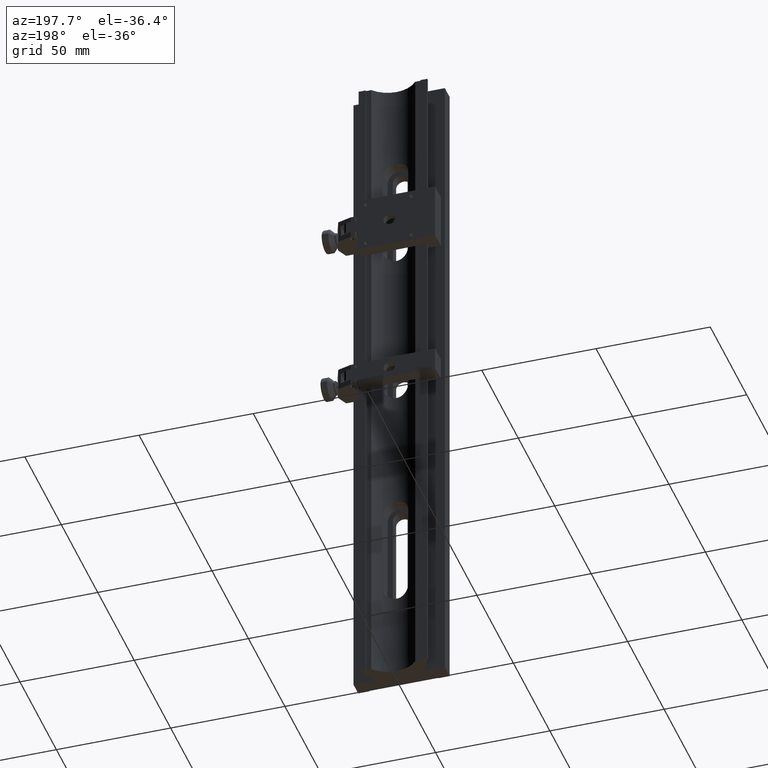
[diagram: clean part render]
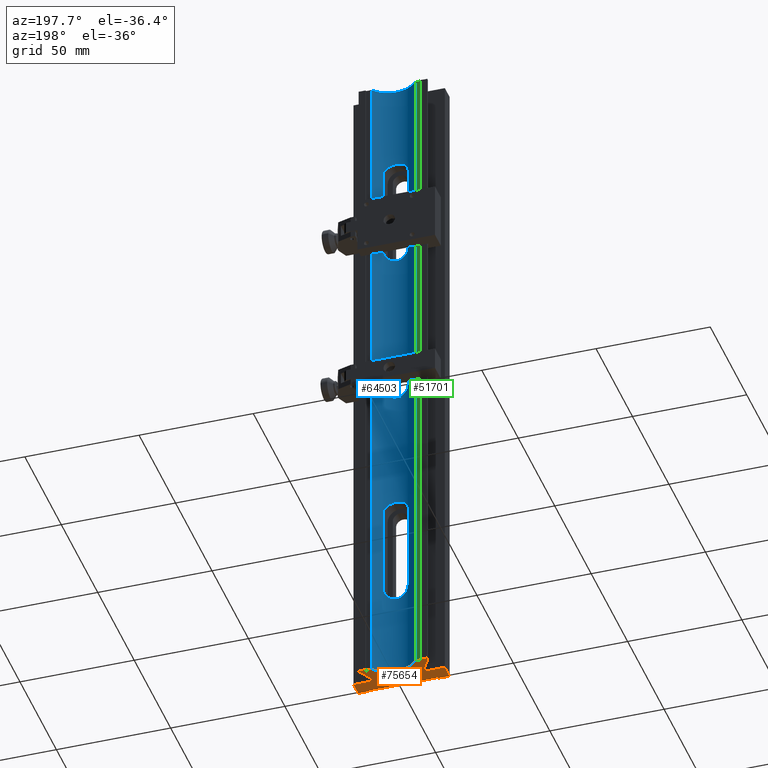
[diagram: same view with three faces highlighted in distinct colors, each labeled with its STEP entity id]
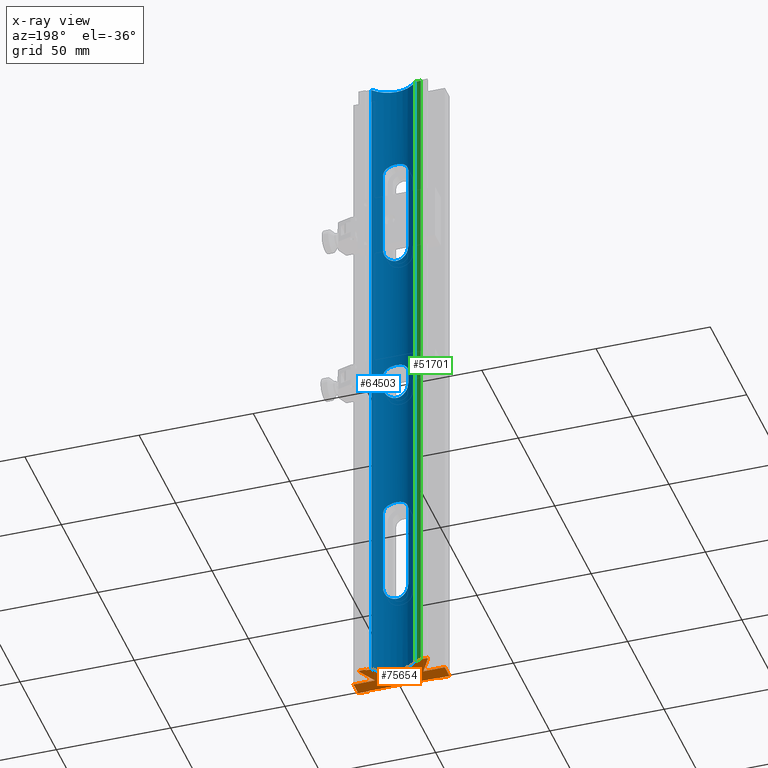
[diagram: x-ray of the same camera — body ghosted, the three highlighted faces saturated]
A machine part, auxiliary view with three faces highlighted in distinct colors.
The next image is the same camera in x-ray (body ghosted, the three faces saturated) — at least one of them is partly hidden behind the body in this view.
Their STEP definitions:

[orange] entity #75654 — the highlighted planar face has unit normal (0, 0, 1).
#15 = ORIENTED_EDGE ( 'NONE', *, *, #36926, .T. ) ;
#715 = VERTEX_POINT ( 'NONE', #27202 ) ;
#970 = DIRECTION ( 'NONE',  ( 0.000000000000000000, -1.000000000000000000, 0.000000000000000000 ) ) ;
#1093 = CARTESIAN_POINT ( 'NONE',  ( -15.00000000000000000, 16.00000000000000000, -150.0000000000000000 ) ) ;
#1174 = ORIENTED_EDGE ( 'NONE', *, *, #44946, .F. ) ;
#1497 = VECTOR ( 'NONE', #94269, 1000.000000000000000 ) ;
#2943 = ORIENTED_EDGE ( 'NONE', *, *, #31234, .T. ) ;
#3721 = EDGE_CURVE ( 'NONE', #57667, #82278, #35475, .T. ) ;
#5481 = VECTOR ( 'NONE', #106075, 1000.000000000000000 ) ;
#8774 = ORIENTED_EDGE ( 'NONE', *, *, #14013, .F. ) ;
#9200 = LINE ( 'NONE', #57708, #78560 ) ;
#10929 = DIRECTION ( 'NONE',  ( -1.717114570520704725E-16, -1.000000000000000000, 0.000000000000000000 ) ) ;
#11088 = EDGE_CURVE ( 'NONE', #92897, #31683, #21319, .T. ) ;
#12032 = CARTESIAN_POINT ( 'NONE',  ( -20.00000000000000000, 0.000000000000000000, -150.0000000000000000 ) ) ;
#12337 = VECTOR ( 'NONE', #89177, 1000.000000000000114 ) ;
#12543 = DIRECTION ( 'NONE',  ( 0.000000000000000000, -1.000000000000000000, 0.000000000000000000 ) ) ;
#12746 = LINE ( 'NONE', #14351, #82286 ) ;
#13601 = CARTESIAN_POINT ( 'NONE',  ( -2.407148620655124556E-16, 16.00000000000000000, -150.0000000000000000 ) ) ;
#14013 = EDGE_CURVE ( 'NONE', #17846, #86171, #74757, .T. ) ;
#14351 = CARTESIAN_POINT ( 'NONE',  ( 12.00000000000000000, 16.00000000000000000, -150.0000000000000000 ) ) ;
#14386 = EDGE_CURVE ( 'NONE', #63423, #78706, #14459, .T. ) ;
#14459 = LINE ( 'NONE', #47684, #85428 ) ;
#14757 = VECTOR ( 'NONE', #29805, 1000.000000000000000 ) ;
#15882 = LINE ( 'NONE', #98179, #46671 ) ;
#15992 = CARTESIAN_POINT ( 'NONE',  ( -20.00000000000000000, -6.500000000000000000, -150.0000000000000000 ) ) ;
#16219 = EDGE_LOOP ( 'NONE', ( #53375, #67725, #43174, #48150, #1174, #15, #93702, #37400, #8774, #77466, #68247, #24662, #25445, #85345, #53199, #26446, #58038, #24479, #36992, #95260, #40640, #56105, #26282, #2943 ) ) ;
#16585 = EDGE_CURVE ( 'NONE', #99293, #92897, #24936, .T. ) ;
#16652 = VECTOR ( 'NONE', #10929, 1000.000000000000000 ) ;
#17051 = DIRECTION ( 'NONE',  ( 1.000000000000000000, 1.301042606982603842E-16, 0.000000000000000000 ) ) ;
#17480 = CARTESIAN_POINT ( 'NONE',  ( -20.00000000000000000, 0.000000000000000000, -150.0000000000000000 ) ) ;
#17685 = CARTESIAN_POINT ( 'NONE',  ( -2.407148620655124556E-16, 16.00000000000000000, -150.0000000000000000 ) ) ;
#17842 = EDGE_CURVE ( 'NONE', #48597, #51888, #51442, .T. ) ;
#17846 = VERTEX_POINT ( 'NONE', #59077 ) ;
#18759 = PLANE ( 'NONE',  #106030 ) ;
#20233 = VECTOR ( 'NONE', #24217, 1000.000000000000000 ) ;
#20933 = VECTOR ( 'NONE', #34182, 1000.000000000000114 ) ;
#21026 = VECTOR ( 'NONE', #33020, 1000.000000000000000 ) ;
#21319 = LINE ( 'NONE', #12032, #73553 ) ;
#21839 = DIRECTION ( 'NONE',  ( -1.000000000000000000, 0.000000000000000000, 0.000000000000000000 ) ) ;
#22031 = VERTEX_POINT ( 'NONE', #101615 ) ;
#24217 = DIRECTION ( 'NONE',  ( 0.000000000000000000, 1.000000000000000000, 0.000000000000000000 ) ) ;
#24479 = ORIENTED_EDGE ( 'NONE', *, *, #62747, .F. ) ;
#24662 = ORIENTED_EDGE ( 'NONE', *, *, #3721, .T. ) ;
#24936 = LINE ( 'NONE', #90863, #20933 ) ;
#25015 = DIRECTION ( 'NONE',  ( -1.000000000000000000, -3.154042683594195121E-16, 0.000000000000000000 ) ) ;
#25017 = CARTESIAN_POINT ( 'NONE',  ( 12.00000000000000000, 8.500000000000000000, -150.0000000000000000 ) ) ;
#25445 = ORIENTED_EDGE ( 'NONE', *, *, #30784, .F. ) ;
#25867 = DIRECTION ( 'NONE',  ( 0.000000000000000000, 0.000000000000000000, 1.000000000000000000 ) ) ;
#26238 = EDGE_CURVE ( 'NONE', #17846, #45802, #12746, .T. ) ;
#26282 = ORIENTED_EDGE ( 'NONE', *, *, #16585, .F. ) ;
#26446 = ORIENTED_EDGE ( 'NONE', *, *, #91014, .F. ) ;
#26878 = LINE ( 'NONE', #15992, #26995 ) ;
#26995 = VECTOR ( 'NONE', #17051, 1000.000000000000000 ) ;
#27003 = CARTESIAN_POINT ( 'NONE',  ( -2.407148620655124556E-16, 8.400000000000000355, -150.0000000000000000 ) ) ;
#27202 = CARTESIAN_POINT ( 'NONE',  ( -12.00000000000000000, 8.000000000000000000, -150.0000000000000000 ) ) ;
#27553 = CARTESIAN_POINT ( 'NONE',  ( -2.407148620655124556E-16, -6.000000000000000000, -150.0000000000000000 ) ) ;
#28333 = EDGE_CURVE ( 'NONE', #60702, #76033, #83292, .T. ) ;
#29805 = DIRECTION ( 'NONE',  ( 2.101878407556359713E-16, -1.000000000000000000, 0.000000000000000000 ) ) ;
#30784 = EDGE_CURVE ( 'NONE', #78706, #82278, #64680, .T. ) ;
#31234 = EDGE_CURVE ( 'NONE', #99293, #78513, #98825, .T. ) ;
#31298 = CARTESIAN_POINT ( 'NONE',  ( -15.00000000000000000, 14.43276648600719980, -150.0000000000000000 ) ) ;
#31305 = CARTESIAN_POINT ( 'NONE',  ( 15.00000000000000000, -6.000000000000000000, -150.0000000000000000 ) ) ;
#31683 = VERTEX_POINT ( 'NONE', #17480 ) ;
#33020 = DIRECTION ( 'NONE',  ( -5.337610695313250398E-16, 1.000000000000000000, 0.000000000000000000 ) ) ;
#33573 = CARTESIAN_POINT ( 'NONE',  ( 10.59252271188811889, 2.594419806801890142E-15, -150.0000000000000000 ) ) ;
#33950 = EDGE_CURVE ( 'NONE', #86171, #69729, #69860, .T. ) ;
#34046 = EDGE_CURVE ( 'NONE', #57667, #45802, #9200, .T. ) ;
#34182 = DIRECTION ( 'NONE',  ( 0.5000000000000011102, -0.8660254037844379305, 0.000000000000000000 ) ) ;
#34347 = DIRECTION ( 'NONE',  ( 0.000000000000000000, -1.000000000000000000, 0.000000000000000000 ) ) ;
#35189 = DIRECTION ( 'NONE',  ( -1.000000000000000000, 0.000000000000000000, 0.000000000000000000 ) ) ;
#35475 = LINE ( 'NONE', #43077, #16652 ) ;
#35744 = DIRECTION ( 'NONE',  ( 1.000000000000000000, 0.000000000000000000, 0.000000000000000000 ) ) ;
#35989 = CARTESIAN_POINT ( 'NONE',  ( 15.00000000000000000, -6.500000000000000000, -150.0000000000000000 ) ) ;
#36377 = DIRECTION ( 'NONE',  ( -1.000000000000000000, -1.445602896647339903E-16, 0.000000000000000000 ) ) ;
#36926 = EDGE_CURVE ( 'NONE', #95833, #715, #70170, .T. ) ;
#36992 = ORIENTED_EDGE ( 'NONE', *, *, #43323, .T. ) ;
#37400 = ORIENTED_EDGE ( 'NONE', *, *, #33950, .F. ) ;
#37534 = EDGE_CURVE ( 'NONE', #22031, #97856, #26878, .T. ) ;
#40082 = VECTOR ( 'NONE', #34347, 1000.000000000000000 ) ;
#40339 = CARTESIAN_POINT ( 'NONE',  ( -15.00000000000000000, -6.000000000000000000, -150.0000000000000000 ) ) ;
#40640 = ORIENTED_EDGE ( 'NONE', *, *, #88113, .F. ) ;
#41752 = CARTESIAN_POINT ( 'NONE',  ( 15.00000000000000000, 7.633974596215580277, -150.0000000000000000 ) ) ;
#42391 = LINE ( 'NONE', #42916, #43861 ) ;
#42916 = CARTESIAN_POINT ( 'NONE',  ( -13.29999999999996518, 16.00000000000000000, -150.0000000000000000 ) ) ;
#43077 = CARTESIAN_POINT ( 'NONE',  ( 15.00000000000000000, 14.43276648600719980, -150.0000000000000000 ) ) ;
#43174 = ORIENTED_EDGE ( 'NONE', *, *, #47840, .F. ) ;
#43323 = EDGE_CURVE ( 'NONE', #107840, #97856, #66521, .T. ) ;
#43861 = VECTOR ( 'NONE', #970, 1000.000000000000000 ) ;
#44946 = EDGE_CURVE ( 'NONE', #95833, #46118, #79944, .T. ) ;
#45802 = VERTEX_POINT ( 'NONE', #25017 ) ;
#46118 = VERTEX_POINT ( 'NONE', #75018 ) ;
#46166 = CARTESIAN_POINT ( 'NONE',  ( -15.50000000000000000, 8.500000000000000000, -150.0000000000000000 ) ) ;
#46671 = VECTOR ( 'NONE', #49121, 1000.000000000000000 ) ;
#46791 = CARTESIAN_POINT ( 'NONE',  ( -20.00000000000000000, -6.500000000000000000, -150.0000000000000000 ) ) ;
#47684 = CARTESIAN_POINT ( 'NONE',  ( 20.00000000000000000, 4.898587196589409870E-15, -150.0000000000000000 ) ) ;
#47840 = EDGE_CURVE ( 'NONE', #98299, #76033, #100551, .T. ) ;
#48150 = ORIENTED_EDGE ( 'NONE', *, *, #57801, .F. ) ;
#48597 = VERTEX_POINT ( 'NONE', #35989 ) ;
#48766 = VECTOR ( 'NONE', #36377, 1000.000000000000000 ) ;
#48932 = CARTESIAN_POINT ( 'NONE',  ( 15.00000000000000000, 8.500000000000000000, -150.0000000000000000 ) ) ;
#49121 = DIRECTION ( 'NONE',  ( -1.000000000000000000, 0.000000000000000000, 0.000000000000000000 ) ) ;
#49371 = LINE ( 'NONE', #65217, #21026 ) ;
#50908 = CARTESIAN_POINT ( 'NONE',  ( 15.00000000000000000, 16.00000000000000000, -150.0000000000000000 ) ) ;
#50934 = VECTOR ( 'NONE', #106211, 1000.000000000000000 ) ;
#51442 = LINE ( 'NONE', #50908, #20233 ) ;
#51888 = VERTEX_POINT ( 'NONE', #31305 ) ;
#52410 = CARTESIAN_POINT ( 'NONE',  ( -15.00000000000000000, -6.500000000000000000, -150.0000000000000000 ) ) ;
#52736 = CARTESIAN_POINT ( 'NONE',  ( -12.00000000000000000, 16.00000000000000000, -150.0000000000000000 ) ) ;
#52914 = CARTESIAN_POINT ( 'NONE',  ( 20.00000000000000000, 4.898587196589409870E-15, -150.0000000000000000 ) ) ;
#53199 = ORIENTED_EDGE ( 'NONE', *, *, #106678, .F. ) ;
#53375 = ORIENTED_EDGE ( 'NONE', *, *, #73063, .F. ) ;
#54175 = DIRECTION ( 'NONE',  ( -2.101878407556359713E-16, 1.000000000000000000, 0.000000000000000000 ) ) ;
#54799 = CARTESIAN_POINT ( 'NONE',  ( -14.69999999999996376, 8.500000000000000000, -150.0000000000000000 ) ) ;
#55911 = VECTOR ( 'NONE', #97772, 1000.000000000000000 ) ;
#56105 = ORIENTED_EDGE ( 'NONE', *, *, #11088, .F. ) ;
#56646 = CARTESIAN_POINT ( 'NONE',  ( -9.604686356149271020, 8.000000000000000000, -150.0000000000000000 ) ) ;
#57667 = VERTEX_POINT ( 'NONE', #48932 ) ;
#57708 = CARTESIAN_POINT ( 'NONE',  ( 10.00000000000000000, 8.500000000000000000, -150.0000000000000000 ) ) ;
#57801 = EDGE_CURVE ( 'NONE', #46118, #98299, #42391, .T. ) ;
#58038 = ORIENTED_EDGE ( 'NONE', *, *, #17842, .T. ) ;
#58422 = VECTOR ( 'NONE', #35744, 1000.000000000000000 ) ;
#59077 = CARTESIAN_POINT ( 'NONE',  ( 12.00000000000000000, 8.000000000000000000, -150.0000000000000000 ) ) ;
#59604 = CARTESIAN_POINT ( 'NONE',  ( -15.00000000000000000, 7.633974596215569619, -150.0000000000000000 ) ) ;
#60702 = VERTEX_POINT ( 'NONE', #54799 ) ;
#60901 = LINE ( 'NONE', #70702, #48766 ) ;
#62747 = EDGE_CURVE ( 'NONE', #107840, #51888, #92956, .T. ) ;
#63423 = VERTEX_POINT ( 'NONE', #52914 ) ;
#63712 = LINE ( 'NONE', #46791, #66223 ) ;
#64680 = LINE ( 'NONE', #33573, #12337 ) ;
#65217 = CARTESIAN_POINT ( 'NONE',  ( 20.00000000000000000, -6.500000000000000000, -150.0000000000000000 ) ) ;
#66223 = VECTOR ( 'NONE', #71909, 1000.000000000000000 ) ;
#66290 = VECTOR ( 'NONE', #91629, 1000.000000000000000 ) ;
#66521 = LINE ( 'NONE', #1093, #40082 ) ;
#67725 = ORIENTED_EDGE ( 'NONE', *, *, #28333, .T. ) ;
#68247 = ORIENTED_EDGE ( 'NONE', *, *, #34046, .F. ) ;
#69437 = FACE_OUTER_BOUND ( 'NONE', #16219, .T. ) ;
#69729 = VERTEX_POINT ( 'NONE', #56646 ) ;
#69860 = CIRCLE ( 'NONE', #90742, 12.50000000000000000 ) ;
#70170 = LINE ( 'NONE', #52736, #14757 ) ;
#70702 = CARTESIAN_POINT ( 'NONE',  ( 9.157674552523589243E-16, 8.000000000000000000, -150.0000000000000000 ) ) ;
#71314 = CARTESIAN_POINT ( 'NONE',  ( -15.00000000000000000, 8.500000000000000000, -150.0000000000000000 ) ) ;
#71909 = DIRECTION ( 'NONE',  ( 1.000000000000000000, 1.301042606982603842E-16, 0.000000000000000000 ) ) ;
#72989 = CARTESIAN_POINT ( 'NONE',  ( 9.604686356149281679, 8.000000000000000000, -150.0000000000000000 ) ) ;
#73063 = EDGE_CURVE ( 'NONE', #60702, #78513, #15882, .T. ) ;
#73553 = VECTOR ( 'NONE', #21839, 1000.000000000000000 ) ;
#74757 = LINE ( 'NONE', #99807, #66290 ) ;
#75018 = CARTESIAN_POINT ( 'NONE',  ( -13.29999999999996518, 8.500000000000000000, -150.0000000000000000 ) ) ;
#75654 = ADVANCED_FACE ( 'NONE', ( #69437 ), #18759, .F. ) ;
#76033 = VERTEX_POINT ( 'NONE', #102517 ) ;
#77403 = LINE ( 'NONE', #102430, #1497 ) ;
#77466 = ORIENTED_EDGE ( 'NONE', *, *, #26238, .T. ) ;
#78513 = VERTEX_POINT ( 'NONE', #71314 ) ;
#78560 = VECTOR ( 'NONE', #25015, 1000.000000000000000 ) ;
#78706 = VERTEX_POINT ( 'NONE', #80567 ) ;
#79944 = LINE ( 'NONE', #46166, #5481 ) ;
#80567 = CARTESIAN_POINT ( 'NONE',  ( 10.59252271188811889, 2.594419806801890142E-15, -150.0000000000000000 ) ) ;
#80946 = DIRECTION ( 'NONE',  ( -1.000000000000000000, -2.449293598294704935E-16, 0.000000000000000000 ) ) ;
#81099 = CARTESIAN_POINT ( 'NONE',  ( -13.29999999999996341, 8.400000000000000355, -150.0000000000000000 ) ) ;
#82278 = VERTEX_POINT ( 'NONE', #41752 ) ;
#82286 = VECTOR ( 'NONE', #54175, 1000.000000000000000 ) ;
#83292 = LINE ( 'NONE', #98558, #50934 ) ;
#84547 = CARTESIAN_POINT ( 'NONE',  ( 20.00000000000000000, -6.500000000000000000, -150.0000000000000000 ) ) ;
#84706 = DIRECTION ( 'NONE',  ( 1.000000000000000000, 0.000000000000000000, 0.000000000000000000 ) ) ;
#85345 = ORIENTED_EDGE ( 'NONE', *, *, #14386, .F. ) ;
#85428 = VECTOR ( 'NONE', #80946, 1000.000000000000000 ) ;
#86171 = VERTEX_POINT ( 'NONE', #72989 ) ;
#87197 = DIRECTION ( 'NONE',  ( 0.000000000000000000, 0.000000000000000000, -1.000000000000000000 ) ) ;
#88113 = EDGE_CURVE ( 'NONE', #31683, #22031, #77403, .T. ) ;
#89177 = DIRECTION ( 'NONE',  ( 0.5000000000000011102, 0.8660254037844379305, 0.000000000000000000 ) ) ;
#90742 = AXIS2_PLACEMENT_3D ( 'NONE', #13601, #87197, #12543 ) ;
#90863 = CARTESIAN_POINT ( 'NONE',  ( -10.59252271188811889, 0.000000000000000000, -150.0000000000000000 ) ) ;
#91014 = EDGE_CURVE ( 'NONE', #48597, #95963, #63712, .T. ) ;
#91267 = EDGE_CURVE ( 'NONE', #69729, #715, #60901, .T. ) ;
#91629 = DIRECTION ( 'NONE',  ( -1.000000000000000000, -1.445602896647339903E-16, 0.000000000000000000 ) ) ;
#92795 = CARTESIAN_POINT ( 'NONE',  ( -10.59252271188811889, 0.000000000000000000, -150.0000000000000000 ) ) ;
#92897 = VERTEX_POINT ( 'NONE', #92795 ) ;
#92956 = LINE ( 'NONE', #27553, #58422 ) ;
#93702 = ORIENTED_EDGE ( 'NONE', *, *, #91267, .F. ) ;
#94269 = DIRECTION ( 'NONE',  ( 5.337610695313250398E-16, -1.000000000000000000, 0.000000000000000000 ) ) ;
#95260 = ORIENTED_EDGE ( 'NONE', *, *, #37534, .F. ) ;
#95833 = VERTEX_POINT ( 'NONE', #106383 ) ;
#95963 = VERTEX_POINT ( 'NONE', #84547 ) ;
#97772 = DIRECTION ( 'NONE',  ( -1.717114570520704725E-16, 1.000000000000000000, 0.000000000000000000 ) ) ;
#97856 = VERTEX_POINT ( 'NONE', #52410 ) ;
#98179 = CARTESIAN_POINT ( 'NONE',  ( -15.50000000000000000, 8.500000000000000000, -150.0000000000000000 ) ) ;
#98299 = VERTEX_POINT ( 'NONE', #81099 ) ;
#98558 = CARTESIAN_POINT ( 'NONE',  ( -14.69999999999996376, 16.00000000000000000, -150.0000000000000000 ) ) ;
#98825 = LINE ( 'NONE', #31298, #55911 ) ;
#99293 = VERTEX_POINT ( 'NONE', #59604 ) ;
#99807 = CARTESIAN_POINT ( 'NONE',  ( 9.157674552523589243E-16, 8.000000000000000000, -150.0000000000000000 ) ) ;
#100551 = LINE ( 'NONE', #27003, #103239 ) ;
#101615 = CARTESIAN_POINT ( 'NONE',  ( -20.00000000000000000, -6.500000000000000000, -150.0000000000000000 ) ) ;
#102430 = CARTESIAN_POINT ( 'NONE',  ( -20.00000000000000000, -6.500000000000000000, -150.0000000000000000 ) ) ;
#102517 = CARTESIAN_POINT ( 'NONE',  ( -14.69999999999996376, 8.400000000000000355, -150.0000000000000000 ) ) ;
#103239 = VECTOR ( 'NONE', #35189, 1000.000000000000000 ) ;
#106030 = AXIS2_PLACEMENT_3D ( 'NONE', #17685, #25867, #84706 ) ;
#106075 = DIRECTION ( 'NONE',  ( -1.000000000000000000, 0.000000000000000000, 0.000000000000000000 ) ) ;
#106211 = DIRECTION ( 'NONE',  ( 0.000000000000000000, -1.000000000000000000, 0.000000000000000000 ) ) ;
#106383 = CARTESIAN_POINT ( 'NONE',  ( -12.00000000000000000, 8.500000000000000000, -150.0000000000000000 ) ) ;
#106678 = EDGE_CURVE ( 'NONE', #95963, #63423, #49371, .T. ) ;
#107840 = VERTEX_POINT ( 'NONE', #40339 ) ;

[blue] entity #64503 — the highlighted cylindrical surface (edge-blend (fillet) strip) has radius 12.5 mm, axis along (0, 0, -1).
#136 = CARTESIAN_POINT ( 'NONE',  ( 4.015738057610427347, 4.161861125430387887, 64.23757891460469693 ) ) ;
#142 = B_SPLINE_CURVE_WITH_KNOTS ( 'NONE', 3,
 ( #83381, #82853, #75767, #101368, #100803, #8727, #27248, #41971, #75241, #562, #43042, #92082, #9279, #1092, #34346, #67589, #92652, #26175, #59418, #51231, #84475, #34892, #68146, #59964, #26729, #18533, #46267, #85551, #77913, #77386, #79522, #29386, #53383, #36497, #71357, #35964, #10895, #19620, #44131, #94783, #94254, #19057, #104031, #52857, #54470, #52312, #2718, #87156, #60486, #104579, #69742, #78987, #87689, #11946, #4862, #20144, #93695, #70292, #69208, #102417, #45184, #28853, #62633, #38099, #3248, #103500, #102968, #86612, #28339 ),
 .UNSPECIFIED., .F., .F.,
 ( 4, 2, 2, 2, 1, 2, 2, 2, 2, 2, 2, 2, 2, 2, 2, 2, 2, 2, 2, 2, 2, 2, 2, 2, 2, 2, 2, 2, 2, 2, 2, 2, 2, 2, 4 ),
 ( 0.000000000000000000, 0.03124999999999326233, 0.06249999999998652467, 0.09374999999997979394, 0.1093749999999764355, 0.1171874999999747563, 0.1249999999999731048, 0.1562499999999707456, 0.1718749999999706346, 0.1874999999999704958, 0.2187499999999702738, 0.2499999999999700240, 0.3124999999999710787, 0.3437499999999716338, 0.3593749999999724110, 0.3749999999999731881, 0.4374999999999780176, 0.4687499999999803491, 0.4999999999999827915, 0.5312499999999851230, 0.5624999999999875655, 0.5937499999999898970, 0.6249999999999922284, 0.6874999999999970024, 0.7500000000000016653, 0.7812500000000041078, 0.7968750000000043299, 0.8125000000000046629, 0.8437500000000052180, 0.8593750000000055511, 0.8750000000000058842, 0.9062500000000043299, 0.9218750000000036637, 0.9375000000000028866, 1.000000000000000000 ),
 .UNSPECIFIED. ) ;
#336 = CARTESIAN_POINT ( 'NONE',  ( 5.463657503841867324, 4.757000894244789890, -107.7309839756683232 ) ) ;
#562 = CARTESIAN_POINT ( 'NONE',  ( 5.142233148014029531, 4.606678887116031795, -66.04815407046707776 ) ) ;
#681 = CARTESIAN_POINT ( 'NONE',  ( -4.929441339661958743, 4.512659850615900581, 65.55395616721060037 ) ) ;
#763 = CARTESIAN_POINT ( 'NONE',  ( 5.500000000000000000, 4.775027839678170238, 68.00000000000000000 ) ) ;
#902 = LINE ( 'NONE', #52110, #88291 ) ;
#1092 = CARTESIAN_POINT ( 'NONE',  ( 4.929441339648362508, 4.512659850610064360, -65.55395616721160934 ) ) ;
#1184 = CARTESIAN_POINT ( 'NONE',  ( 5.500000000000000000, 4.775027839678170238, -107.0000000000000000 ) ) ;
#1213 = CARTESIAN_POINT ( 'NONE',  ( 4.665318909456575014, 4.402735864927528553, 65.08152572732076635 ) ) ;
#1415 = CARTESIAN_POINT ( 'NONE',  ( 0.3701077564717403789, 3.504179345663937628, 8.490568087372597716 ) ) ;
#1544 = CARTESIAN_POINT ( 'NONE',  ( -9.604686356149271020, 8.000000000000000000, 150.0000000000000000 ) ) ;
#1718 = CARTESIAN_POINT ( 'NONE',  ( 5.500000000000000000, 4.775027839678170238, -3.000000000000000000 ) ) ;
#1962 = CARTESIAN_POINT ( 'NONE',  ( 1.952307958270782073, 3.652256180998122215, -112.1449714826360236 ) ) ;
#1997 = DIRECTION ( 'NONE',  ( 0.000000000000000000, 0.000000000000000000, -1.000000000000000000 ) ) ;
#2373 = EDGE_CURVE ( 'NONE', #81634, #82597, #59017, .T. ) ;
#2499 = CARTESIAN_POINT ( 'NONE',  ( 5.372158271769155391, 4.713267661042523038, -108.1825385895741931 ) ) ;
#2718 = CARTESIAN_POINT ( 'NONE',  ( -3.361407017363283511, 3.956522123330768803, -63.63197559456720853 ) ) ;
#2993 = EDGE_LOOP ( 'NONE', ( #50111, #15145, #16728, #4350 ) ) ;
#3028 = CARTESIAN_POINT ( 'NONE',  ( 1.444497519182465384, 3.578586092108463568, 8.319369745042608955 ) ) ;
#3243 = CARTESIAN_POINT ( 'NONE',  ( 2.530243525070543509, 3.758500524202666782, 111.8843117858613283 ) ) ;
#3248 = CARTESIAN_POINT ( 'NONE',  ( -5.352613230967219415, 4.703977259434220848, -66.73201233064806104 ) ) ;
#3633 = CARTESIAN_POINT ( 'NONE',  ( -5.500000000000000000, 4.775027839678170238, 107.0000000000000000 ) ) ;
#3962 = VECTOR ( 'NONE', #99081, 1000.000000000000000 ) ;
#4062 = CARTESIAN_POINT ( 'NONE',  ( -5.500000000000000000, 4.775027839678149810, 150.0000000000000000 ) ) ;
#4350 = ORIENTED_EDGE ( 'NONE', *, *, #79285, .T. ) ;
#4573 = CARTESIAN_POINT ( 'NONE',  ( 4.665318909529267088, 4.402735864956042633, -5.918474272582844975 ) ) ;
#4857 = CARTESIAN_POINT ( 'NONE',  ( 2.209418400915253766, 3.696515998156873817, 112.0375327684377567 ) ) ;
#4862 = CARTESIAN_POINT ( 'NONE',  ( -4.665318909390868463, 4.402735864901758944, -65.08152572709268213 ) ) ;
#4919 = ORIENTED_EDGE ( 'NONE', *, *, #94079, .F. ) ;
#5104 = CARTESIAN_POINT ( 'NONE',  ( -3.364906687157528609, 3.957508521045324468, -7.365302061940321998 ) ) ;
#5646 = LINE ( 'NONE', #38882, #91192 ) ;
#5853 = CARTESIAN_POINT ( 'NONE',  ( -0.7303886115081613672, 3.520054244792910403, -112.4543441360767417 ) ) ;
#5922 = ORIENTED_EDGE ( 'NONE', *, *, #2373, .T. ) ;
#6324 = B_SPLINE_CURVE_WITH_KNOTS ( 'NONE', 3,
 ( #71351, #78444, #70284, #38649, #46260, #13026, #63181, #69737, #38092, #62091, #71897, #53908, #88736, #22275, #37041, #14093, #28331, #105106, #78982, #30461, #70811, #63700, #96390, #29381, #77908, #79517, #3243, #46780, #20137, #4857, #11941, #62627, #28848, #87151, #13558, #12490, #21750, #40246, #7531, #72418, #6458, #6989, #57115, #8056, #31539, #15683, #14635, #66384, #56592, #82203, #39701, #107765, #72945, #48926, #74017, #33126, #65311, #99596, #15154, #81649, #82728, #32588, #41290, #80603, #40773, #98524, #106719, #97450, #106172 ),
 .UNSPECIFIED., .F., .F.,
 ( 4, 2, 2, 2, 1, 2, 2, 2, 2, 2, 2, 2, 2, 2, 2, 2, 2, 2, 2, 2, 2, 2, 2, 2, 2, 2, 2, 2, 2, 2, 2, 2, 2, 2, 4 ),
 ( 0.000000000000000000, 0.03124999999999032718, 0.06249999999998065436, 0.09374999999997098155, 0.1093749999999672623, 0.1171874999999665407, 0.1249999999999658051, 0.1562499999999673872, 0.1718749999999681921, 0.1874999999999689970, 0.2187499999999704681, 0.2499999999999719669, 0.3124999999999748534, 0.3437499999999769629, 0.3593749999999780176, 0.3749999999999790723, 0.4374999999999813483, 0.4687499999999827360, 0.4999999999999841238, 0.5312499999999855671, 0.5624999999999870104, 0.5937499999999884537, 0.6249999999999897859, 0.6874999999999916733, 0.7499999999999936717, 0.7812499999999954481, 0.7968749999999963363, 0.8124999999999973355, 0.8437499999999992228, 0.8593750000000001110, 0.8750000000000009992, 0.9062500000000007772, 0.9218750000000006661, 0.9375000000000004441, 1.000000000000000000 ),
 .UNSPECIFIED. ) ;
#6371 = CARTESIAN_POINT ( 'NONE',  ( -2.289650343536877575, 3.711215294623427141, -112.0015666567373813 ) ) ;
#6453 = EDGE_CURVE ( 'NONE', #98511, #81634, #5646, .T. ) ;
#6458 = CARTESIAN_POINT ( 'NONE',  ( -1.258729195416138813, 3.562257522746554272, 112.3570968719534449 ) ) ;
#6902 = CARTESIAN_POINT ( 'NONE',  ( -5.091692050643155554, 4.584001363913674076, -109.0800598435108952 ) ) ;
#6989 = CARTESIAN_POINT ( 'NONE',  ( -1.434117890927020245, 3.581316569886983103, 112.3128718673419115 ) ) ;
#7064 = CARTESIAN_POINT ( 'NONE',  ( 5.499999999999993783, 4.775027839678173791, 67.63309191346969840 ) ) ;
#7103 = CARTESIAN_POINT ( 'NONE',  ( 4.303793879091045049, 4.264117700457376259, -6.425781035840063105 ) ) ;
#7449 = CARTESIAN_POINT ( 'NONE',  ( -4.802895322253568189, 4.459450167748512328, -109.6815822667974913 ) ) ;
#7456 = CARTESIAN_POINT ( 'NONE',  ( 5.005864491758924117, 4.545875613847098151, 5.285396399306862669 ) ) ;
#7466 = CARTESIAN_POINT ( 'NONE',  ( 5.500000000000000000, 4.775027839678200436, -68.00000000000000000 ) ) ;
#7531 = CARTESIAN_POINT ( 'NONE',  ( -0.7207135020367848588, 3.519472763472462074, 112.4556736127539125 ) ) ;
#7639 = CARTESIAN_POINT ( 'NONE',  ( 3.361407017091875726, 3.956522123262162349, -7.368024405614848504 ) ) ;
#7778 = CARTESIAN_POINT ( 'NONE',  ( 1.779892072812164772, 3.626141407322412302, 62.79276722743727390 ) ) ;
#7974 = CARTESIAN_POINT ( 'NONE',  ( 4.468915740874892961, 4.325664254014213839, 6.210986789758401017 ) ) ;
#8056 = CARTESIAN_POINT ( 'NONE',  ( -1.952307958560303591, 3.652256181047898398, 112.1449714824640580 ) ) ;
#8161 = CARTESIAN_POINT ( 'NONE',  ( 1.434117891835299252, 3.581316569991872534, -8.312871867120549041 ) ) ;
#8303 = CARTESIAN_POINT ( 'NONE',  ( 4.358307309900584237, 4.284269413269627513, 64.64387005103348827 ) ) ;
#8508 = CARTESIAN_POINT ( 'NONE',  ( 2.209418400975945218, 3.696515998167346773, 8.037532768425371899 ) ) ;
#8727 = CARTESIAN_POINT ( 'NONE',  ( 5.356527580164381241, 4.705790443026200087, -66.73894314574718578 ) ) ;
#8841 = ORIENTED_EDGE ( 'NONE', *, *, #42814, .F. ) ;
#8854 = CARTESIAN_POINT ( 'NONE',  ( 5.204858276764877445, 4.635016861339119387, 66.21324252915400166 ) ) ;
#9059 = CARTESIAN_POINT ( 'NONE',  ( 4.885076897416816166, 4.493995710284703016, -109.5287846943000574 ) ) ;
#9279 = CARTESIAN_POINT ( 'NONE',  ( 5.005864491775508185, 4.545875613854462927, -65.71460360073270124 ) ) ;
#9395 = CARTESIAN_POINT ( 'NONE',  ( 0.7207135030053226643, 3.519472763528392445, 62.54432638728356153 ) ) ;
#9585 = CARTESIAN_POINT ( 'NONE',  ( 4.135091016624079963, 4.203164717013613050, -110.6308625020855771 ) ) ;
#9685 = DIRECTION ( 'NONE',  ( 0.000000000000000000, 1.000000000000000000, 0.000000000000000000 ) ) ;
#9927 = CARTESIAN_POINT ( 'NONE',  ( -4.137470932291677173, 4.203995538657121500, 64.37181670976787018 ) ) ;
#10048 = CARTESIAN_POINT ( 'NONE',  ( -5.005864491717019860, 4.545875613828483708, -5.285396399356001140 ) ) ;
#10127 = CARTESIAN_POINT ( 'NONE',  ( -5.500000000000000000, 4.775027839678170238, 3.000000000000000000 ) ) ;
#10183 = VERTEX_POINT ( 'NONE', #31479 ) ;
#10895 = CARTESIAN_POINT ( 'NONE',  ( -0.1755107677251485088, 3.499893366897775415, -62.49975603469067664 ) ) ;
#11132 = CARTESIAN_POINT ( 'NONE',  ( -4.758727769753727799, 4.441150765419902058, -5.759189625101820198 ) ) ;
#11649 = CARTESIAN_POINT ( 'NONE',  ( -4.137470932168539228, 4.203995538613929384, -6.628183290434649599 ) ) ;
#11731 = CARTESIAN_POINT ( 'NONE',  ( -4.303793879059051974, 4.264117700445641646, 6.425781035887211168 ) ) ;
#11941 = CARTESIAN_POINT ( 'NONE',  ( 1.789934297190949986, 3.624132059756714153, 112.2133061993347098 ) ) ;
#11946 = CARTESIAN_POINT ( 'NONE',  ( -4.514041282970223001, 4.343398210368961898, -64.85650001503891815 ) ) ;
#12271 = CARTESIAN_POINT ( 'NONE',  ( -1.779892072480131260, 3.626141407274651840, 8.207232772668355381 ) ) ;
#12490 = CARTESIAN_POINT ( 'NONE',  ( 0.1903846084218070445, 3.500111057725356911, 112.4997459787511787 ) ) ;
#12543 = DIRECTION ( 'NONE',  ( 0.000000000000000000, -1.000000000000000000, 0.000000000000000000 ) ) ;
#12744 = CARTESIAN_POINT ( 'NONE',  ( -0.1903846084225622182, 3.500111057725356023, -8.499745978725346873 ) ) ;
#12975 = ORIENTED_EDGE ( 'NONE', *, *, #28641, .T. ) ;
#13026 = CARTESIAN_POINT ( 'NONE',  ( 5.356527580154115675, 4.705790443021291125, 108.2610568543037317 ) ) ;
#13125 = VERTEX_POINT ( 'NONE', #7466 ) ;
#13272 = CARTESIAN_POINT ( 'NONE',  ( 5.284109138786468485, 4.671759251092566956, -4.528702289666258096 ) ) ;
#13558 = CARTESIAN_POINT ( 'NONE',  ( 0.3701077562791252329, 3.504179345658232414, 112.4905680874113898 ) ) ;
#13601 = CARTESIAN_POINT ( 'NONE',  ( -2.407148620655124556E-16, 16.00000000000000000, -150.0000000000000000 ) ) ;
#13810 = CARTESIAN_POINT ( 'NONE',  ( -5.455121614117065754, 4.753131674226023229, 67.27531651340216001 ) ) ;
#13995 = CARTESIAN_POINT ( 'NONE',  ( -4.617490606710872747, 4.383993317442699045, -109.9894279392648997 ) ) ;
#14093 = CARTESIAN_POINT ( 'NONE',  ( 4.758727769835754629, 4.441150765453603100, 109.7591896249430192 ) ) ;
#14635 = CARTESIAN_POINT ( 'NONE',  ( -3.361407016358756827, 3.956522123076836372, 111.3680244062618812 ) ) ;
#15145 = ORIENTED_EDGE ( 'NONE', *, *, #59539, .T. ) ;
#15154 = CARTESIAN_POINT ( 'NONE',  ( -5.002232553293543660, 4.544458996370056347, 109.2881968365709042 ) ) ;
#15482 = VECTOR ( 'NONE', #94513, 1000.000000000000000 ) ;
#15594 = CARTESIAN_POINT ( 'NONE',  ( -5.190108595092723043, 4.628332961476822938, -108.8241885355447494 ) ) ;
#15683 = CARTESIAN_POINT ( 'NONE',  ( -2.765603593456551490, 3.805909084092255590, 111.7676058942269748 ) ) ;
#15699 = FACE_BOUND ( 'NONE', #83799, .T. ) ;
#15803 = CARTESIAN_POINT ( 'NONE',  ( -2.209418401095522455, 3.696515998187980045, -8.037532768375092118 ) ) ;
#16161 = CARTESIAN_POINT ( 'NONE',  ( 4.363069006838039776, 4.285563786116338036, 6.353508449982540718 ) ) ;
#16305 = CARTESIAN_POINT ( 'NONE',  ( 5.352613230940994171, 4.703977259421774804, 66.73201233051852910 ) ) ;
#16342 = CARTESIAN_POINT ( 'NONE',  ( 5.500000000000000000, 4.775027839678170238, -3.000000000000000000 ) ) ;
#16487 = CARTESIAN_POINT ( 'NONE',  ( -0.7303886107380602732, 3.520054244747838901, 62.54565586376813258 ) ) ;
#16684 = CARTESIAN_POINT ( 'NONE',  ( 4.666373475852723551, 4.403558985695759986, 5.912593436445957806 ) ) ;
#16728 = ORIENTED_EDGE ( 'NONE', *, *, #77618, .T. ) ;
#17017 = CARTESIAN_POINT ( 'NONE',  ( 5.002232553349517552, 4.544458996394562078, 65.71180316358206142 ) ) ;
#17217 = CARTESIAN_POINT ( 'NONE',  ( 5.427730480749342057, 4.739835744437627341, 3.906840300968930091 ) ) ;
#17566 = CARTESIAN_POINT ( 'NONE',  ( -5.109210554617636291, 4.591832082301492868, 65.96331446504666474 ) ) ;
#17722 = VERTEX_POINT ( 'NONE', #91941 ) ;
#18120 = CARTESIAN_POINT ( 'NONE',  ( -4.468915740986184382, 4.325664254057905111, 64.78901321040767414 ) ) ;
#18137 = ORIENTED_EDGE ( 'NONE', *, *, #104349, .T. ) ;
#18156 = CARTESIAN_POINT ( 'NONE',  ( 5.500000000000000000, 4.775027839678189778, 150.0000000000000000 ) ) ;
#18242 = CARTESIAN_POINT ( 'NONE',  ( -5.500000000000000000, 4.775027839678180896, -3.000000000000000000 ) ) ;
#18314 = CARTESIAN_POINT ( 'NONE',  ( -4.925441755962303603, 4.511232715748087152, 5.449199021525983788 ) ) ;
#18533 = CARTESIAN_POINT ( 'NONE',  ( 2.765722348069100001, 3.808751223036164646, -63.24255551627963712 ) ) ;
#18847 = CARTESIAN_POINT ( 'NONE',  ( -4.358307309789855033, 4.284269413228332546, 6.356129949114637689 ) ) ;
#19057 = CARTESIAN_POINT ( 'NONE',  ( -1.434117892924812399, 3.581316570117688336, -62.68712813325302591 ) ) ;
#19099 = DIRECTION ( 'NONE',  ( 0.000000000000000000, 0.000000000000000000, -1.000000000000000000 ) ) ;
#19397 = CARTESIAN_POINT ( 'NONE',  ( -0.3577994105552861903, 3.503801872748250279, 8.491429492122623657 ) ) ;
#19620 = CARTESIAN_POINT ( 'NONE',  ( -0.3577994109435413406, 3.503801872759366276, -62.50857050787687541 ) ) ;
#19931 = CARTESIAN_POINT ( 'NONE',  ( -0.7207135024262096845, 3.519472763494948975, 8.455673612793189520 ) ) ;
#20137 = CARTESIAN_POINT ( 'NONE',  ( 2.289650343342185757, 3.711215294587529634, 112.0015666568830852 ) ) ;
#20144 = CARTESIAN_POINT ( 'NONE',  ( -4.758004236037735701, 4.440595182954435671, -65.23520454977256122 ) ) ;
#20467 = CARTESIAN_POINT ( 'NONE',  ( -3.636595778205724105, 4.037729822914334576, 7.141609658648167880 ) ) ;
#20917 = CARTESIAN_POINT ( 'NONE',  ( 5.372158271769153615, 4.713267661042524814, -4.182538589651231042 ) ) ;
#21750 = CARTESIAN_POINT ( 'NONE',  ( -0.1755107672062105328, 3.499893366898084501, 112.5002439652827917 ) ) ;
#22275 = CARTESIAN_POINT ( 'NONE',  ( 4.929441339649079268, 4.512659850610371670, 109.4460438327482876 ) ) ;
#22346 = CARTESIAN_POINT ( 'NONE',  ( 5.463657503841867324, 4.757000894244790778, 67.26901602453882845 ) ) ;
#23432 = CARTESIAN_POINT ( 'NONE',  ( 5.284109138711101217, 4.671759251057413742, 66.47129771003915266 ) ) ;
#23992 = CARTESIAN_POINT ( 'NONE',  ( -2.765722348110168483, 3.808751223045480305, -7.757444483702832905 ) ) ;
#24316 = CARTESIAN_POINT ( 'NONE',  ( -2.450725789867058690, 3.742321943629119296, -111.9246784001451971 ) ) ;
#24322 = CARTESIAN_POINT ( 'NONE',  ( 5.142233148013994004, 4.606678887116017584, 4.951845929532967538 ) ) ;
#24680 = CARTESIAN_POINT ( 'NONE',  ( -0.3701077556992625195, 3.504179345641056376, 62.50943191254933140 ) ) ;
#24879 = CARTESIAN_POINT ( 'NONE',  ( -4.758727769763424931, 4.441150765423883762, -109.7591896252498458 ) ) ;
#24887 = CARTESIAN_POINT ( 'NONE',  ( 5.091692050634379463, 4.584001363909776749, 5.080059843550269072 ) ) ;
#25217 = CARTESIAN_POINT ( 'NONE',  ( -0.9096761233438485084, 3.531860062971545755, 62.57270019492838742 ) ) ;
#25738 = VERTEX_POINT ( 'NONE', #79085 ) ;
#25749 = CARTESIAN_POINT ( 'NONE',  ( -1.444497520209124142, 3.578586092198162483, 62.68063025506144470 ) ) ;
#25751 = VECTOR ( 'NONE', #34505, 1000.000000000000000 ) ;
#25947 = CARTESIAN_POINT ( 'NONE',  ( 0.7207135028166787860, 3.519472763517498937, -112.4556736128714221 ) ) ;
#25953 = CARTESIAN_POINT ( 'NONE',  ( 5.500000000000000000, 4.775027839678170238, 3.000000000000000000 ) ) ;
#26175 = CARTESIAN_POINT ( 'NONE',  ( 4.617490606419726973, 4.383993317328396699, -65.01057206035916636 ) ) ;
#26299 = CARTESIAN_POINT ( 'NONE',  ( -2.530243524769028252, 3.758500524140345966, 63.11568821404384266 ) ) ;
#26506 = CARTESIAN_POINT ( 'NONE',  ( 1.779892072812001347, 3.626141407322388766, -112.2072327724470426 ) ) ;
#26514 = CARTESIAN_POINT ( 'NONE',  ( -5.002232553389553082, 4.544458996412089391, 5.288196836367532683 ) ) ;
#26729 = CARTESIAN_POINT ( 'NONE',  ( 2.918607440326147717, 3.844537025774178662, -63.33482366291249832 ) ) ;
#27031 = CARTESIAN_POINT ( 'NONE',  ( 5.284109138682019591, 4.671759251043846817, -108.5287022899524345 ) ) ;
#27037 = CARTESIAN_POINT ( 'NONE',  ( -5.308369325030112051, 4.683118218131651744, 4.442152008205543012 ) ) ;
#27248 = CARTESIAN_POINT ( 'NONE',  ( 5.312355819044278782, 4.684865289565999902, -66.56395745933539843 ) ) ;
#28027 = CARTESIAN_POINT ( 'NONE',  ( -5.455121614117065754, 4.753131674226026782, -3.724683486527740062 ) ) ;
#28114 = CARTESIAN_POINT ( 'NONE',  ( -1.258729196286077601, 3.562257522822066758, 8.357096871701729768 ) ) ;
#28275 = AXIS2_PLACEMENT_3D ( 'NONE', #43079, #19099, #28373 ) ;
#28331 = CARTESIAN_POINT ( 'NONE',  ( 4.666373475867890086, 4.403558985701844009, 109.9125934363879082 ) ) ;
#28338 = EDGE_CURVE ( 'NONE', #86171, #51507, #31572, .T. ) ;
#28339 = CARTESIAN_POINT ( 'NONE',  ( -5.500000000000000000, 4.775027839678170238, -68.00000000000000000 ) ) ;
#28373 = DIRECTION ( 'NONE',  ( 0.000000000000000000, -1.000000000000000000, 0.000000000000000000 ) ) ;
#28571 = CARTESIAN_POINT ( 'NONE',  ( -5.356527580141766443, 4.705790443015389179, -4.261056854360012025 ) ) ;
#28641 = EDGE_CURVE ( 'NONE', #79602, #74975, #30656, .T. ) ;
#28647 = CARTESIAN_POINT ( 'NONE',  ( -4.665318909503069378, 4.402735864945767297, 5.918474272621794263 ) ) ;
#28848 = CARTESIAN_POINT ( 'NONE',  ( 0.9096761237291089985, 3.531860063005205941, 112.4272998050454930 ) ) ;
#28853 = CARTESIAN_POINT ( 'NONE',  ( -5.204858276810121254, 4.635016861359837037, -66.21324252937587573 ) ) ;
#29381 = CARTESIAN_POINT ( 'NONE',  ( 3.364906686793808444, 3.957508520953259001, 111.3653020621468954 ) ) ;
#29386 = CARTESIAN_POINT ( 'NONE',  ( 1.444497519696801735, 3.578586092153402287, -62.68063025495819574 ) ) ;
#29825 = VECTOR ( 'NONE', #82444, 1000.000000000000000 ) ;
#30180 = EDGE_CURVE ( 'NONE', #103963, #82597, #75124, .T. ) ;
#30185 = CARTESIAN_POINT ( 'NONE',  ( 5.002232553412111038, 4.544458996421966823, -5.288196836333379558 ) ) ;
#30191 = CARTESIAN_POINT ( 'NONE',  ( -5.427730480760499354, 4.739835744442963517, 67.09315969903526877 ) ) ;
#30461 = CARTESIAN_POINT ( 'NONE',  ( 4.363069007134302346, 4.285563786226681771, 110.3535084496035239 ) ) ;
#30656 = B_SPLINE_CURVE_WITH_KNOTS ( 'NONE', 3,
 ( #39087, #31442, #82114, #73412, #66285, #81565, #57022, #90248, #15594, #99503, #64699, #6902, #98961, #48837, #7449, #24879, #106637, #13995, #55976, #31984, #49382, #65228, #98434, #82642, #32501, #89200, #40690, #24316, #6371, #47248, #80512, #73931, #65745, #5853, #39613, #106082, #101133, #83712, #25947, #34662, #41735, #68988, #26506, #1962, #76086, #42826, #59744, #68466, #67908, #9585, #91332, #34122, #77169, #35223, #49903, #67366, #9059, #60265, #100580, #75555, #50451, #75005, #27031, #85322, #92957, #2499, #336, #91862, #83162 ),
 .UNSPECIFIED., .F., .F.,
 ( 4, 2, 2, 2, 1, 2, 2, 2, 2, 2, 2, 2, 2, 2, 2, 2, 2, 2, 2, 2, 2, 2, 2, 2, 2, 2, 2, 2, 2, 2, 2, 2, 2, 2, 4 ),
 ( 0.000000000000000000, 0.03124999999999517747, 0.06249999999999035494, 0.09374999999998553935, 0.1093749999999842765, 0.1171874999999836797, 0.1249999999999830969, 0.1562499999999827638, 0.1718749999999836797, 0.1874999999999845957, 0.2187499999999863998, 0.2499999999999881761, 0.3124999999999917288, 0.3437499999999928391, 0.3593749999999933942, 0.3749999999999938938, 0.4374999999999961697, 0.4687499999999975020, 0.4999999999999988898, 0.5312500000000003331, 0.5625000000000016653, 0.5937500000000031086, 0.6250000000000044409, 0.6875000000000072164, 0.7500000000000099920, 0.7812500000000122125, 0.7968750000000124345, 0.8125000000000127676, 0.8437500000000129896, 0.8593750000000121014, 0.8750000000000113243, 0.9062500000000073275, 0.9218750000000065503, 0.9375000000000056621, 1.000000000000000000 ),
 .UNSPECIFIED. ) ;
#31442 = CARTESIAN_POINT ( 'NONE',  ( -5.499999999999983125, 4.775027839678165797, -107.1820254972323596 ) ) ;
#31479 = CARTESIAN_POINT ( 'NONE',  ( 5.500000000000000000, 4.775027839678170238, 3.000000000000000000 ) ) ;
#31539 = CARTESIAN_POINT ( 'NONE',  ( -2.449545783894379269, 3.737746512703458812, 111.9374871884943587 ) ) ;
#31572 = LINE ( 'NONE', #74051, #3962 ) ;
#31984 = CARTESIAN_POINT ( 'NONE',  ( -4.363069006340424494, 4.285563785931000069, -110.3535084505659398 ) ) ;
#32501 = CARTESIAN_POINT ( 'NONE',  ( -2.918607440754758198, 3.844537025882671877, -111.6651763368061552 ) ) ;
#32588 = CARTESIAN_POINT ( 'NONE',  ( -5.204858276793784988, 4.635016861352356798, 108.7867574707422307 ) ) ;
#32696 = CARTESIAN_POINT ( 'NONE',  ( 5.352613230984826664, 4.703977259442575942, -4.267987669309529331 ) ) ;
#32840 = CARTESIAN_POINT ( 'NONE',  ( -3.638772511583582503, 4.038407086608344798, 63.86036354391973191 ) ) ;
#32890 = EDGE_LOOP ( 'NONE', ( #58178, #33828, #96591, #5922 ) ) ;
#33035 = CARTESIAN_POINT ( 'NONE',  ( 5.455121614117079076, 4.753131674226029446, 3.724683486519673625 ) ) ;
#33126 = CARTESIAN_POINT ( 'NONE',  ( -4.758004236038835266, 4.440595182954888642, 109.7647954501476733 ) ) ;
#33137 = VECTOR ( 'NONE', #87644, 1000.000000000000000 ) ;
#33397 = CARTESIAN_POINT ( 'NONE',  ( -3.364906687191843382, 3.957508521054013517, 63.63469793797970908 ) ) ;
#33828 = ORIENTED_EDGE ( 'NONE', *, *, #41198, .T. ) ;
#33927 = CARTESIAN_POINT ( 'NONE',  ( -2.209418400984057396, 3.696515998168746542, 62.96246723160202663 ) ) ;
#33950 = EDGE_CURVE ( 'NONE', #86171, #69729, #69860, .T. ) ;
#34122 = CARTESIAN_POINT ( 'NONE',  ( 4.358307309291120646, 4.284269413042335550, -110.3561299496917769 ) ) ;
#34129 = CARTESIAN_POINT ( 'NONE',  ( 5.356527580164379465, 4.705790443026200087, 4.261056854252662340 ) ) ;
#34230 = CARTESIAN_POINT ( 'NONE',  ( -2.407148620655124556E-16, 16.00000000000000000, 150.0000000000000000 ) ) ;
#34346 = CARTESIAN_POINT ( 'NONE',  ( 4.802895322331605321, 4.459450167780987684, -65.31841773349721336 ) ) ;
#34463 = CARTESIAN_POINT ( 'NONE',  ( 4.135091017293756721, 4.203164717248351501, 64.36913749870559798 ) ) ;
#34505 = DIRECTION ( 'NONE',  ( 0.000000000000000000, 0.000000000000000000, -1.000000000000000000 ) ) ;
#34662 = CARTESIAN_POINT ( 'NONE',  ( 0.9032068810115391200, 3.531397253567164718, -112.4283577965030219 ) ) ;
#34668 = CARTESIAN_POINT ( 'NONE',  ( 1.789934296947588654, 3.624132059714724630, 8.213306199384385664 ) ) ;
#34892 = CARTESIAN_POINT ( 'NONE',  ( 4.016916292833406565, 4.162264739382218082, -64.23886011120319495 ) ) ;
#35223 = CARTESIAN_POINT ( 'NONE',  ( 4.514041282983281000, 4.343398210374083135, -110.1434999849416272 ) ) ;
#35753 = CARTESIAN_POINT ( 'NONE',  ( -4.015738057528738914, 4.161861125403641282, 6.762421085502996476 ) ) ;
#35964 = CARTESIAN_POINT ( 'NONE',  ( 0.1903846089407467967, 3.500111057725664665, -62.50025402127533170 ) ) ;
#36203 = CARTESIAN_POINT ( 'NONE',  ( -5.190108595023738225, 4.628332961445416949, -4.824188535877945938 ) ) ;
#36497 = CARTESIAN_POINT ( 'NONE',  ( 0.7303886111231754352, 3.520054244770377760, -62.54565586384578069 ) ) ;
#37041 = CARTESIAN_POINT ( 'NONE',  ( 4.802895322332321193, 4.459450167781286112, 109.6815822664627120 ) ) ;
#38092 = CARTESIAN_POINT ( 'NONE',  ( 5.190108595040091366, 4.628332961452863437, 108.8241885358042680 ) ) ;
#38099 = CARTESIAN_POINT ( 'NONE',  ( -5.308369325014966833, 4.683118218124538323, -66.55784799178977096 ) ) ;
#38340 = CARTESIAN_POINT ( 'NONE',  ( -1.789934296469182451, 3.624132059632172886, -8.213306199584668121 ) ) ;
#38649 = CARTESIAN_POINT ( 'NONE',  ( 5.455121614117079076, 4.753131674226030334, 107.7246834865196945 ) ) ;
#38882 = CARTESIAN_POINT ( 'NONE',  ( -5.500000000000000000, 4.775027839678170238, 150.0000000000000000 ) ) ;
#39087 = CARTESIAN_POINT ( 'NONE',  ( -5.500000000000000000, 4.775027839678180896, -107.0000000000000000 ) ) ;
#39613 = CARTESIAN_POINT ( 'NONE',  ( -0.3701077564703436074, 3.504179345663896328, -112.4905680872955713 ) ) ;
#39701 = CARTESIAN_POINT ( 'NONE',  ( -4.303793878763551461, 4.264117700337276773, 110.4257810362252314 ) ) ;
#40246 = CARTESIAN_POINT ( 'NONE',  ( -0.3577994101653722558, 3.503801872737087209, 112.4914294920833271 ) ) ;
#40315 = CARTESIAN_POINT ( 'NONE',  ( 5.500000000000000000, 4.775027839678170238, 68.00000000000000000 ) ) ;
#40356 = CARTESIAN_POINT ( 'NONE',  ( 1.952307957818541384, 3.652256180920366635, -8.144971482875863700 ) ) ;
#40690 = CARTESIAN_POINT ( 'NONE',  ( -2.530243525402924298, 3.758500524271366494, -111.8843117856116152 ) ) ;
#40699 = CARTESIAN_POINT ( 'NONE',  ( 4.802895322306504511, 4.459450167770541817, 5.681582266562115180 ) ) ;
#40773 = CARTESIAN_POINT ( 'NONE',  ( -5.352613230957752322, 4.703977259429726665, 108.2679876694209895 ) ) ;
#40783 = FACE_OUTER_BOUND ( 'NONE', #42889, .T. ) ;
#40878 = CARTESIAN_POINT ( 'NONE',  ( -4.016916293141045813, 4.162264739482982812, -6.761139888592505365 ) ) ;
#41017 = CARTESIAN_POINT ( 'NONE',  ( 2.449545785960925315, 3.737746513058760822, 63.06251281262282049 ) ) ;
#41198 = EDGE_CURVE ( 'NONE', #103963, #98511, #6324, .T. ) ;
#41213 = CARTESIAN_POINT ( 'NONE',  ( 2.765722348069042269, 3.808751223036149103, 7.757444483720380646 ) ) ;
#41290 = CARTESIAN_POINT ( 'NONE',  ( -5.284109138739915501, 4.671759251070852770, 108.5287022898570939 ) ) ;
#41304 = CYLINDRICAL_SURFACE ( 'NONE', #43001, 12.50000000000000000 ) ;
#41402 = CARTESIAN_POINT ( 'NONE',  ( 0.3577994101667013593, 3.503801872737125400, -8.491429492122106737 ) ) ;
#41544 = CARTESIAN_POINT ( 'NONE',  ( -0.1903846090685854253, 3.500111057725741937, 62.50025402122381735 ) ) ;
#41735 = CARTESIAN_POINT ( 'NONE',  ( 1.258729196508693082, 3.562257522841387747, -112.3570968715540488 ) ) ;
#41971 = CARTESIAN_POINT ( 'NONE',  ( 5.233035530922664158, 4.648075555309949536, -66.30466281506272708 ) ) ;
#42103 = CARTESIAN_POINT ( 'NONE',  ( -1.789934296915669298, 3.624132059709214371, 62.78669380050632043 ) ) ;
#42631 = CARTESIAN_POINT ( 'NONE',  ( 0.9032068810114334267, 3.531397253567155836, 62.57164220357410045 ) ) ;
#42814 = EDGE_CURVE ( 'NONE', #13125, #74975, #66086, .T. ) ;
#42826 = CARTESIAN_POINT ( 'NONE',  ( 2.765603593500442603, 3.805909084103351159, -111.7676058942357713 ) ) ;
#42889 = EDGE_LOOP ( 'NONE', ( #52151, #46640, #56053, #4919 ) ) ;
#42926 = CARTESIAN_POINT ( 'NONE',  ( 5.500000000000000000, 4.775027839678180896, 150.0000000000000000 ) ) ;
#43001 = AXIS2_PLACEMENT_3D ( 'NONE', #34230, #83266, #9685 ) ;
#43042 = CARTESIAN_POINT ( 'NONE',  ( 5.109210554622960920, 4.591832082303871410, -65.96331446504869689 ) ) ;
#43079 = CARTESIAN_POINT ( 'NONE',  ( -2.407148620655124556E-16, 16.00000000000000000, 150.0000000000000000 ) ) ;
#43162 = CARTESIAN_POINT ( 'NONE',  ( -2.450725789285091327, 3.742321943513488236, 63.07532159953895246 ) ) ;
#44131 = CARTESIAN_POINT ( 'NONE',  ( -0.7207135028139773913, 3.519472763517341729, -62.54432638720638948 ) ) ;
#44445 = CARTESIAN_POINT ( 'NONE',  ( 0.7303886115095546971, 3.520054244792991227, 8.454344136153801870 ) ) ;
#44971 = CARTESIAN_POINT ( 'NONE',  ( 0.1903846086817274907, 3.500111057725511010, 8.499745978724966733 ) ) ;
#45184 = CARTESIAN_POINT ( 'NONE',  ( -5.143399642978513597, 4.606960437307376033, -66.04333329372067851 ) ) ;
#45441 = CARTESIAN_POINT ( 'NONE',  ( -5.091692050644832435, 4.584001363914418370, -5.080059843537881648 ) ) ;
#45978 = CARTESIAN_POINT ( 'NONE',  ( 1.258729196023370633, 3.562257522799261888, -8.357096871805843818 ) ) ;
#46260 = CARTESIAN_POINT ( 'NONE',  ( 5.427730480759606735, 4.739835744442535415, 107.9068403009178354 ) ) ;
#46267 = CARTESIAN_POINT ( 'NONE',  ( 2.530243524753486462, 3.758500524137135201, -63.11568821396640061 ) ) ;
#46640 = ORIENTED_EDGE ( 'NONE', *, *, #33950, .T. ) ;
#46780 = CARTESIAN_POINT ( 'NONE',  ( 2.450725789561909895, 3.742321943568489129, 111.9246784003741340 ) ) ;
#47034 = CARTESIAN_POINT ( 'NONE',  ( 4.015738057550335860, 4.161861125410714735, -6.762421085471656212 ) ) ;
#47248 = CARTESIAN_POINT ( 'NONE',  ( -2.209418400862315668, 3.696515998147739790, -112.0375327684226932 ) ) ;
#48837 = CARTESIAN_POINT ( 'NONE',  ( -4.929441339570688640, 4.512659850576735465, -109.4460438330830669 ) ) ;
#48926 = CARTESIAN_POINT ( 'NONE',  ( -4.514041282969855295, 4.343398210368817125, 110.1434999849877130 ) ) ;
#49038 = CARTESIAN_POINT ( 'NONE',  ( 4.925441755997856497, 4.511232715763354939, -5.449199021472431070 ) ) ;
#49382 = CARTESIAN_POINT ( 'NONE',  ( -4.137470931621374248, 4.203995538422010014, -110.6281832910646159 ) ) ;
#49389 = CARTESIAN_POINT ( 'NONE',  ( 3.364906687212078307, 3.957508521059131645, 7.365302061916933596 ) ) ;
#49719 = CARTESIAN_POINT ( 'NONE',  ( 1.434117892561487695, 3.581316570075733452, 62.68712813314135701 ) ) ;
#49903 = CARTESIAN_POINT ( 'NONE',  ( 4.665318909364624567, 4.402735864891461404, -109.9184742729463835 ) ) ;
#49910 = CARTESIAN_POINT ( 'NONE',  ( 4.137470932122434775, 4.203995538597760095, 6.628183290481056922 ) ) ;
#50111 = ORIENTED_EDGE ( 'NONE', *, *, #58366, .F. ) ;
#50245 = CARTESIAN_POINT ( 'NONE',  ( 5.500000000000000000, 4.775027839678200436, 150.0000000000000000 ) ) ;
#50255 = CARTESIAN_POINT ( 'NONE',  ( 3.361407017486785165, 3.956522123361991383, 63.63197559474027543 ) ) ;
#50451 = CARTESIAN_POINT ( 'NONE',  ( 5.143399642928644155, 4.606960437285231968, -108.9566667064215153 ) ) ;
#50819 = CARTESIAN_POINT ( 'NONE',  ( -4.016916293139414229, 4.162264739482448128, 64.23886011145759767 ) ) ;
#51156 = CARTESIAN_POINT ( 'NONE',  ( 5.500000000000000000, 4.775027839678180896, 107.0000000000000000 ) ) ;
#51231 = CARTESIAN_POINT ( 'NONE',  ( 4.363069007219876561, 4.285563786258553165, -64.64649155056181939 ) ) ;
#51354 = CARTESIAN_POINT ( 'NONE',  ( -4.363069007006097344, 4.285563786178932411, 64.64649155026646099 ) ) ;
#51474 = CARTESIAN_POINT ( 'NONE',  ( -5.427730480771911559, 4.739835744448418708, -3.906840300862024495 ) ) ;
#51507 = VERTEX_POINT ( 'NONE', #73113 ) ;
#51551 = CARTESIAN_POINT ( 'NONE',  ( -5.463657503841853114, 4.757000894244782785, 3.730983975357600180 ) ) ;
#52091 = CARTESIAN_POINT ( 'NONE',  ( -1.952307957829093832, 3.652256180922181628, 8.144971482875268620 ) ) ;
#52110 = CARTESIAN_POINT ( 'NONE',  ( -9.604686356149271020, 8.000000000000000000, 150.0000000000000000 ) ) ;
#52151 = ORIENTED_EDGE ( 'NONE', *, *, #28338, .F. ) ;
#52312 = CARTESIAN_POINT ( 'NONE',  ( -2.765603592452022141, 3.805909083838320939, -63.23239410494384316 ) ) ;
#52857 = CARTESIAN_POINT ( 'NONE',  ( -1.952307957608312661, 3.652256180884222214, -62.85502851698618088 ) ) ;
#53169 = CARTESIAN_POINT ( 'NONE',  ( -0.9032068812343694297, 3.531397253586504803, 8.428357796355470555 ) ) ;
#53383 = CARTESIAN_POINT ( 'NONE',  ( 0.9096761236000366901, 3.531860062993928295, -62.57270019498017888 ) ) ;
#53619 = CARTESIAN_POINT ( 'NONE',  ( -4.929441339560179713, 4.512659850572225295, -5.446043832921418471 ) ) ;
#53702 = CARTESIAN_POINT ( 'NONE',  ( -4.514041282914038611, 4.343398210346924415, 6.143499985103995975 ) ) ;
#53908 = CARTESIAN_POINT ( 'NONE',  ( 5.091692050630184596, 4.584001363907910687, 109.0800598435667581 ) ) ;
#54171 = CARTESIAN_POINT ( 'NONE',  ( -0.3701077560847828574, 3.504179345652477462, -8.490568087373059569 ) ) ;
#54470 = CARTESIAN_POINT ( 'NONE',  ( -2.449545785798361131, 3.737746513030811624, -63.06251281260619379 ) ) ;
#55229 = CARTESIAN_POINT ( 'NONE',  ( 5.204858276840489850, 4.635016861373748576, -4.786757470551379789 ) ) ;
#55976 = CARTESIAN_POINT ( 'NONE',  ( -4.468915740545394755, 4.325664253884855093, -110.2109867901471603 ) ) ;
#56053 = ORIENTED_EDGE ( 'NONE', *, *, #100878, .F. ) ;
#56592 = CARTESIAN_POINT ( 'NONE',  ( -4.015738057329319766, 4.161861125338351286, 110.7624210857283344 ) ) ;
#56646 = CARTESIAN_POINT ( 'NONE',  ( -9.604686356149271020, 8.000000000000000000, -150.0000000000000000 ) ) ;
#57022 = CARTESIAN_POINT ( 'NONE',  ( -5.312355819088636188, 4.684865289586824133, -108.4360425404446460 ) ) ;
#57115 = CARTESIAN_POINT ( 'NONE',  ( -1.779892071183596602, 3.626141407088153468, 112.2072327730459449 ) ) ;
#57225 = CARTESIAN_POINT ( 'NONE',  ( -2.289650343180553715, 3.711215294557729028, -8.001566656973288616 ) ) ;
#57573 = CARTESIAN_POINT ( 'NONE',  ( 4.929441339623374496, 4.512659850599339606, 5.446043832847652588 ) ) ;
#57639 = CARTESIAN_POINT ( 'NONE',  ( -5.500000000000000000, 4.775027839678180896, -107.0000000000000000 ) ) ;
#57924 = CARTESIAN_POINT ( 'NONE',  ( 1.258729196508798109, 3.562257522841397517, 62.64290312836870100 ) ) ;
#58178 = ORIENTED_EDGE ( 'NONE', *, *, #30180, .F. ) ;
#58366 = EDGE_CURVE ( 'NONE', #10183, #61254, #83546, .T. ) ;
#58449 = CARTESIAN_POINT ( 'NONE',  ( 4.885076897553197739, 4.493995710342607808, 65.47121530610041873 ) ) ;
#58648 = CARTESIAN_POINT ( 'NONE',  ( 5.190108595053660956, 4.628332961459038941, 4.824188535737276240 ) ) ;
#58986 = CARTESIAN_POINT ( 'NONE',  ( 0.1755107678528939619, 3.499893366897699032, 62.49975603474216257 ) ) ;
#59017 = B_SPLINE_CURVE_WITH_KNOTS ( 'NONE', 3,
 ( #71616, #88998, #104831, #13810, #30191, #63431, #105358, #97169, #91143, #100384, #17566, #92771, #75369, #681, #84595, #92206, #74264, #107482, #18120, #51354, #9927, #50819, #32840, #33397, #66093, #84072, #26299, #43162, #99305, #33927, #42103, #25749, #25217, #16487, #24680, #41544, #58986, #59546, #9395, #42631, #57924, #49719, #7778, #82977, #41017, #67174, #50255, #75889, #136, #34463, #67715, #8303, #74804, #66647, #1213, #99848, #58449, #91676, #17017, #83507, #100927, #8854, #23432, #90411, #16305, #96981, #22346, #7064, #40315 ),
 .UNSPECIFIED., .F., .F.,
 ( 4, 2, 2, 2, 1, 2, 2, 2, 2, 2, 2, 2, 2, 2, 2, 2, 2, 2, 2, 2, 2, 2, 2, 2, 2, 2, 2, 2, 2, 2, 2, 2, 2, 2, 4 ),
 ( 0.000000000000000000, 0.03125000000000443395, 0.06250000000000886791, 0.09375000000001329492, 0.1093750000000143913, 0.1171875000000138362, 0.1250000000000132672, 0.1562500000000131284, 0.1718750000000120182, 0.1875000000000108802, 0.2187500000000085765, 0.2500000000000062728, 0.3125000000000016653, 0.3437500000000000555, 0.3593749999999998335, 0.3749999999999995559, 0.4374999999999985012, 0.4687499999999980016, 0.4999999999999974465, 0.5312499999999968914, 0.5624999999999963363, 0.5937499999999957812, 0.6249999999999952260, 0.6874999999999941158, 0.7499999999999928946, 0.7812499999999924505, 0.7968749999999922284, 0.8124999999999920064, 0.8437499999999934497, 0.8593749999999952260, 0.8749999999999970024, 0.9062499999999983347, 0.9218749999999978906, 0.9374999999999974465, 1.000000000000000000 ),
 .UNSPECIFIED. ) ;
#59418 = CARTESIAN_POINT ( 'NONE',  ( 4.468915741127747587, 4.325664254113480212, -64.78901321060466501 ) ) ;
#59539 = EDGE_CURVE ( 'NONE', #10183, #78461, #74395, .T. ) ;
#59546 = CARTESIAN_POINT ( 'NONE',  ( 0.3577994111351263662, 3.503801872764853886, 62.50857050795411141 ) ) ;
#59744 = CARTESIAN_POINT ( 'NONE',  ( 3.361407016314899909, 3.956522123065751462, -111.3680244062531983 ) ) ;
#59750 = CARTESIAN_POINT ( 'NONE',  ( -5.143399642989631815, 4.606960437312314305, 4.956666706275925982 ) ) ;
#59964 = CARTESIAN_POINT ( 'NONE',  ( 3.364906687212275926, 3.957508521059185380, -63.63469793808299357 ) ) ;
#60265 = CARTESIAN_POINT ( 'NONE',  ( 4.925441755774412123, 4.511232715667400583, -109.4491990219722339 ) ) ;
#60486 = CARTESIAN_POINT ( 'NONE',  ( -4.015738057387906679, 4.161861125357532387, -64.23757891440800449 ) ) ;
#61254 = VERTEX_POINT ( 'NONE', #1718 ) ;
#61275 = CARTESIAN_POINT ( 'NONE',  ( -4.666373475815483118, 4.403558985680827043, -5.912593436489069987 ) ) ;
#61883 = CARTESIAN_POINT ( 'NONE',  ( -5.204858276826718644, 4.635016861367441621, 4.786757470618945298 ) ) ;
#62091 = CARTESIAN_POINT ( 'NONE',  ( 5.142233148005273868, 4.606678887112082954, 108.9518459295760238 ) ) ;
#62335 = CARTESIAN_POINT ( 'NONE',  ( 4.135091017204244324, 4.203164717216977486, -6.630862501408809173 ) ) ;
#62627 = CARTESIAN_POINT ( 'NONE',  ( 1.444497519438660005, 3.578586092130850993, 112.3193697449910218 ) ) ;
#62633 = CARTESIAN_POINT ( 'NONE',  ( -5.284109138756200252, 4.671759251078447583, -66.47129771026099831 ) ) ;
#63181 = CARTESIAN_POINT ( 'NONE',  ( 5.312355819028829806, 4.684865289558746149, 108.4360425407410844 ) ) ;
#63425 = CARTESIAN_POINT ( 'NONE',  ( 2.765603592723469006, 3.805909083906940715, -7.767605894874185068 ) ) ;
#63431 = CARTESIAN_POINT ( 'NONE',  ( -5.356527580153176871, 4.705790443020843483, 66.73894314574307884 ) ) ;
#63700 = CARTESIAN_POINT ( 'NONE',  ( 4.016916292916578257, 4.162264739409461178, 110.7611398887654133 ) ) ;
#64503 = ADVANCED_FACE ( 'NONE', ( #40783, #67473, #15699, #65848 ), #41304, .F. ) ;
#64699 = CARTESIAN_POINT ( 'NONE',  ( -5.109210554636934631, 4.591832082310120633, -109.0366855348825510 ) ) ;
#65228 = CARTESIAN_POINT ( 'NONE',  ( -4.016916293305681229, 4.162264739536906788, -110.7611398884797183 ) ) ;
#65311 = CARTESIAN_POINT ( 'NONE',  ( -4.885076897456792189, 4.493995710301676105, 109.5287846941618142 ) ) ;
#65420 = CARTESIAN_POINT ( 'NONE',  ( 3.636595778162580839, 4.037729822900208099, -7.141609658711171704 ) ) ;
#65745 = CARTESIAN_POINT ( 'NONE',  ( -0.9096761238561240637, 3.531860063016301510, -112.4272998049682002 ) ) ;
#65848 = FACE_BOUND ( 'NONE', #32890, .T. ) ;
#65946 = CARTESIAN_POINT ( 'NONE',  ( -2.450725789308673352, 3.742321943518174265, -7.924678400515952958 ) ) ;
#66086 = LINE ( 'NONE', #50245, #29825 ) ;
#66093 = CARTESIAN_POINT ( 'NONE',  ( -2.918607440336433267, 3.844537025776781469, 63.33482366296411215 ) ) ;
#66285 = CARTESIAN_POINT ( 'NONE',  ( -5.427730480719829664, 4.739835744423516850, -107.9068403011158637 ) ) ;
#66384 = CARTESIAN_POINT ( 'NONE',  ( -3.636595778604560181, 4.037729823044911015, 111.1416096581974386 ) ) ;
#66647 = CARTESIAN_POINT ( 'NONE',  ( 4.514041282937306221, 4.343398210356049560, 64.85650001492503236 ) ) ;
#66846 = CARTESIAN_POINT ( 'NONE',  ( 5.233035530922643730, 4.648075555309945095, 4.695337184937189434 ) ) ;
#66941 = DIRECTION ( 'NONE',  ( 0.000000000000000000, 0.000000000000000000, -1.000000000000000000 ) ) ;
#67174 = CARTESIAN_POINT ( 'NONE',  ( 2.765603592328555127, 3.805909083807109017, 63.23239410477089706 ) ) ;
#67366 = CARTESIAN_POINT ( 'NONE',  ( 4.758004235998657627, 4.440595182938349872, -109.7647954502859164 ) ) ;
#67473 = FACE_BOUND ( 'NONE', #2993, .T. ) ;
#67589 = CARTESIAN_POINT ( 'NONE',  ( 4.758727769835091159, 4.441150765453331317, -65.24081037502034519 ) ) ;
#67715 = CARTESIAN_POINT ( 'NONE',  ( 4.303793879180092041, 4.264117700490031027, 64.57421896427430852 ) ) ;
#67908 = CARTESIAN_POINT ( 'NONE',  ( 4.015738057160846530, 4.161861125283195406, -110.7624210859228526 ) ) ;
#67913 = CARTESIAN_POINT ( 'NONE',  ( -1.434117892228275570, 3.581316570037254010, 8.312871866964306022 ) ) ;
#68146 = CARTESIAN_POINT ( 'NONE',  ( 3.638772512195644904, 4.038407086808819990, -63.86036354442864393 ) ) ;
#68393 = CARTESIAN_POINT ( 'NONE',  ( -5.491036920705970381, 4.770622791198571910, -3.363367293990754181 ) ) ;
#68466 = CARTESIAN_POINT ( 'NONE',  ( 3.636595778941561719, 4.037729823155246756, -111.1416096578088997 ) ) ;
#68474 = CARTESIAN_POINT ( 'NONE',  ( -5.372158271769136739, 4.713267661042513268, 4.182538589651621841 ) ) ;
#68739 = CARTESIAN_POINT ( 'NONE',  ( -5.500000000000000000, 4.775027839678180896, 68.00000000000000000 ) ) ;
#68988 = CARTESIAN_POINT ( 'NONE',  ( 1.434117892561331375, 3.581316570075714800, -112.3128718667428387 ) ) ;
#68994 = CARTESIAN_POINT ( 'NONE',  ( -5.499999999999982236, 4.775027839678166686, 3.366908086426664948 ) ) ;
#69208 = CARTESIAN_POINT ( 'NONE',  ( -5.002232553292913053, 4.544458996369781012, -65.71180316338273997 ) ) ;
#69446 = CARTESIAN_POINT ( 'NONE',  ( -4.468915740905202050, 4.325664254026111877, -6.210986789727516388 ) ) ;
#69729 = VERTEX_POINT ( 'NONE', #56646 ) ;
#69737 = CARTESIAN_POINT ( 'NONE',  ( 5.233035530907168109, 4.648075555302808581, 108.6953371850137842 ) ) ;
#69742 = CARTESIAN_POINT ( 'NONE',  ( -4.303793878850370902, 4.264117700369112640, -64.57421896397940486 ) ) ;
#69860 = CIRCLE ( 'NONE', #90742, 12.50000000000000000 ) ;
#70001 = CARTESIAN_POINT ( 'NONE',  ( -5.499999999999982236, 4.775027839678165797, -3.182025497237673584 ) ) ;
#70086 = CARTESIAN_POINT ( 'NONE',  ( -5.284109138772741687, 4.671759251086163189, 4.528702289733850250 ) ) ;
#70284 = CARTESIAN_POINT ( 'NONE',  ( 5.491036920705982816, 4.770622791198576351, 107.3633672939827619 ) ) ;
#70292 = CARTESIAN_POINT ( 'NONE',  ( -4.925441755809982780, 4.511232715682675476, -65.55080097808141204 ) ) ;
#70811 = CARTESIAN_POINT ( 'NONE',  ( 4.137470932420778347, 4.203995538702402612, 110.6281832901020579 ) ) ;
#71059 = CARTESIAN_POINT ( 'NONE',  ( 5.038005680872132075, 4.560158377380449934, -5.208339232384071593 ) ) ;
#71124 = EDGE_CURVE ( 'NONE', #13125, #17722, #142, .T. ) ;
#71351 = CARTESIAN_POINT ( 'NONE',  ( 5.500000000000000000, 4.775027839678180896, 107.0000000000000000 ) ) ;
#71357 = CARTESIAN_POINT ( 'NONE',  ( 0.3701077560848454184, 3.504179345652476130, -62.50943191262693688 ) ) ;
#71607 = CARTESIAN_POINT ( 'NONE',  ( 4.758004236243975171, 4.440595183039325100, -5.764795449740724997 ) ) ;
#71616 = CARTESIAN_POINT ( 'NONE',  ( -5.500000000000000000, 4.775027839678180896, 68.00000000000000000 ) ) ;
#71897 = CARTESIAN_POINT ( 'NONE',  ( 5.109210554618085709, 4.591832082301696261, 109.0366855349752768 ) ) ;
#72131 = DIRECTION ( 'NONE',  ( 0.000000000000000000, 0.000000000000000000, -1.000000000000000000 ) ) ;
#72418 = CARTESIAN_POINT ( 'NONE',  ( -0.9032068821041757678, 3.531397253662006630, 112.4283577961038105 ) ) ;
#72945 = CARTESIAN_POINT ( 'NONE',  ( -4.463930393378396921, 4.324105548975557767, 110.2142465792672681 ) ) ;
#72989 = CARTESIAN_POINT ( 'NONE',  ( 9.604686356149281679, 8.000000000000000000, -150.0000000000000000 ) ) ;
#73113 = CARTESIAN_POINT ( 'NONE',  ( 9.604686356149281679, 8.000000000000000000, 150.0000000000000000 ) ) ;
#73412 = CARTESIAN_POINT ( 'NONE',  ( -5.455121614117065754, 4.753131674226024117, -107.7246834865197229 ) ) ;
#73612 = CARTESIAN_POINT ( 'NONE',  ( 2.449545785377957419, 3.737746512958531220, -7.937487187671353972 ) ) ;
#73931 = CARTESIAN_POINT ( 'NONE',  ( -1.444497519184568146, 3.578586092108650529, -112.3193697451451527 ) ) ;
#73938 = CARTESIAN_POINT ( 'NONE',  ( 5.109210554622916511, 4.591832082303853646, 5.036685534951340415 ) ) ;
#74017 = CARTESIAN_POINT ( 'NONE',  ( -4.665318909391604763, 4.402735864902048490, 109.9184742728541551 ) ) ;
#74051 = CARTESIAN_POINT ( 'NONE',  ( 9.604686356149281679, 8.000000000000000000, 150.0000000000000000 ) ) ;
#74125 = CARTESIAN_POINT ( 'NONE',  ( -0.9096761235999354378, 3.531860062993918969, -8.427299805019845991 ) ) ;
#74264 = CARTESIAN_POINT ( 'NONE',  ( -4.666373475875465360, 4.403558985704883355, 65.08740656358816068 ) ) ;
#74395 = B_SPLINE_CURVE_WITH_KNOTS ( 'NONE', 3,
 ( #25953, #91338, #82121, #33035, #17217, #34129, #100588, #66846, #58648, #24322, #73938, #24887, #7456, #57573, #40699, #90811, #16684, #107156, #7974, #16161, #49910, #83168, #91868, #49389, #82650, #41213, #83720, #74468, #92426, #8508, #34668, #3028, #102742, #44445, #1415, #44971, #86930, #19397, #19931, #53169, #28114, #67913, #12271, #52091, #85328, #78226, #94025, #20467, #35753, #94573, #11731, #18847, #101139, #53702, #28647, #76093, #95104, #18314, #26514, #84795, #59750, #61883, #70086, #27037, #92962, #68474, #51551, #68994, #10127 ),
 .UNSPECIFIED., .F., .F.,
 ( 4, 2, 2, 2, 1, 2, 2, 2, 2, 2, 2, 2, 2, 2, 2, 2, 2, 2, 2, 2, 2, 2, 2, 2, 2, 2, 2, 2, 2, 2, 2, 2, 2, 2, 4 ),
 ( 0.000000000000000000, 0.03124999999999936162, 0.06249999999999872324, 0.09374999999999793221, 0.1093749999999976269, 0.1171874999999974881, 0.1249999999999973355, 0.1562499999999969191, 0.1718749999999967526, 0.1874999999999966138, 0.2187499999999962808, 0.2499999999999959477, 0.3124999999999954481, 0.3437499999999951705, 0.3593749999999952260, 0.3749999999999952260, 0.4374999999999955036, 0.4687499999999956146, 0.4999999999999957812, 0.5312499999999958922, 0.5624999999999960032, 0.5937499999999962252, 0.6249999999999963363, 0.6874999999999966693, 0.7499999999999971134, 0.7812499999999973355, 0.7968749999999974465, 0.8124999999999975575, 0.8437499999999978906, 0.8593749999999980016, 0.8749999999999981126, 0.9062499999999983347, 0.9218749999999985567, 0.9374999999999987788, 1.000000000000000000 ),
 .UNSPECIFIED. ) ;
#74468 = CARTESIAN_POINT ( 'NONE',  ( 2.450725789270762789, 3.742321943510641180, 7.924678400532100042 ) ) ;
#74657 = CARTESIAN_POINT ( 'NONE',  ( 4.514041282900958407, 4.343398210341790744, -6.143499985123344942 ) ) ;
#74804 = CARTESIAN_POINT ( 'NONE',  ( 4.463930393619992998, 4.324105549068279153, 64.78575342102418233 ) ) ;
#74975 = VERTEX_POINT ( 'NONE', #1184 ) ;
#75005 = CARTESIAN_POINT ( 'NONE',  ( 5.204858276735700784, 4.635016861325756743, -108.7867574708374434 ) ) ;
#75124 = LINE ( 'NONE', #42926, #87100 ) ;
#75241 = CARTESIAN_POINT ( 'NONE',  ( 5.190108595053684937, 4.628332961459052264, -66.17581146426269356 ) ) ;
#75250 = CIRCLE ( 'NONE', #28275, 12.50000000000000000 ) ;
#75369 = CARTESIAN_POINT ( 'NONE',  ( -5.005864491784513426, 4.545875613858464170, 65.71460360073194806 ) ) ;
#75555 = CARTESIAN_POINT ( 'NONE',  ( 5.038005680907239991, 4.560158377396040130, -109.2083392322887505 ) ) ;
#75767 = CARTESIAN_POINT ( 'NONE',  ( 5.491036920705982816, 4.770622791198576351, -67.63663270601728073 ) ) ;
#75889 = CARTESIAN_POINT ( 'NONE',  ( 3.636595778042400973, 4.037729822860861795, 63.85839034113673307 ) ) ;
#76086 = CARTESIAN_POINT ( 'NONE',  ( 2.449545784473296628, 3.737746512802991194, -111.9374871881510387 ) ) ;
#76093 = CARTESIAN_POINT ( 'NONE',  ( -4.758004236204946835, 4.440595183023259729, 5.764795449799104965 ) ) ;
#77169 = CARTESIAN_POINT ( 'NONE',  ( 4.463930393233546567, 4.324105548919961350, -110.2142465794374004 ) ) ;
#77386 = CARTESIAN_POINT ( 'NONE',  ( 2.209418401095712969, 3.696515998188014684, -62.96246723162493453 ) ) ;
#77618 = EDGE_CURVE ( 'NONE', #78461, #25738, #98477, .T. ) ;
#77619 = CARTESIAN_POINT ( 'NONE',  ( -4.617490606530884278, 4.383993317372034682, -5.989427939475513440 ) ) ;
#77908 = CARTESIAN_POINT ( 'NONE',  ( 2.918607440535381681, 3.844537025827141630, 111.6651763369727064 ) ) ;
#77913 = CARTESIAN_POINT ( 'NONE',  ( 2.289650343156455214, 3.711215294553286803, -62.99843334301647957 ) ) ;
#78226 = CARTESIAN_POINT ( 'NONE',  ( -2.765603592830723656, 3.805909083934051917, 7.767605894788681020 ) ) ;
#78444 = CARTESIAN_POINT ( 'NONE',  ( 5.499999999999997335, 4.775027839678175567, 107.1820254972323596 ) ) ;
#78461 = VERTEX_POINT ( 'NONE', #100224 ) ;
#78982 = CARTESIAN_POINT ( 'NONE',  ( 4.468915741071085357, 4.325664254091234895, 110.2109867895056681 ) ) ;
#78987 = CARTESIAN_POINT ( 'NONE',  ( -4.358307309598960622, 4.284269413157140605, -64.64387005076311254 ) ) ;
#79085 = CARTESIAN_POINT ( 'NONE',  ( -5.500000000000000000, 4.775027839678180896, -3.000000000000000000 ) ) ;
#79231 = CARTESIAN_POINT ( 'NONE',  ( 0.7207135020381116863, 3.519472763472539789, -8.455673612792603322 ) ) ;
#79285 = EDGE_CURVE ( 'NONE', #25738, #61254, #93795, .T. ) ;
#79517 = CARTESIAN_POINT ( 'NONE',  ( 2.765722348384853646, 3.808751223107795791, 111.7574444835480847 ) ) ;
#79522 = CARTESIAN_POINT ( 'NONE',  ( 1.789934296469119612, 3.624132059632158676, -62.78669380041536385 ) ) ;
#79602 = VERTEX_POINT ( 'NONE', #57639 ) ;
#79757 = CARTESIAN_POINT ( 'NONE',  ( -0.7303886111230978306, 3.520054244770374208, -8.454344136154229972 ) ) ;
#80305 = CARTESIAN_POINT ( 'NONE',  ( 1.779892072088575805, 3.626141407218330226, -8.207232772824752942 ) ) ;
#80512 = CARTESIAN_POINT ( 'NONE',  ( -1.789934297402640206, 3.624132059793243155, -112.2133061993944096 ) ) ;
#80603 = CARTESIAN_POINT ( 'NONE',  ( -5.308369325000056094, 4.683118218117537701, 108.4421520083185300 ) ) ;
#81565 = CARTESIAN_POINT ( 'NONE',  ( -5.356527580193849225, 4.705790443040290150, -108.2610568541062008 ) ) ;
#81634 = VERTEX_POINT ( 'NONE', #68739 ) ;
#81649 = CARTESIAN_POINT ( 'NONE',  ( -5.038005680887754245, 4.560158377387386608, 109.2083392323207249 ) ) ;
#82114 = CARTESIAN_POINT ( 'NONE',  ( -5.491036920705971269, 4.770622791198571910, -107.3633672939827477 ) ) ;
#82121 = CARTESIAN_POINT ( 'NONE',  ( 5.491036920705982816, 4.770622791198576351, 3.363367293982723716 ) ) ;
#82203 = CARTESIAN_POINT ( 'NONE',  ( -4.135091016875041880, 4.203164717101583570, 110.6308625017939704 ) ) ;
#82309 = CARTESIAN_POINT ( 'NONE',  ( -2.918607440353315763, 3.844537025781057160, -7.665176337075826574 ) ) ;
#82444 = DIRECTION ( 'NONE',  ( 0.000000000000000000, 0.000000000000000000, -1.000000000000000000 ) ) ;
#82597 = VERTEX_POINT ( 'NONE', #763 ) ;
#82642 = CARTESIAN_POINT ( 'NONE',  ( -3.364906686355191745, 3.957508520842233146, -111.3653020624796284 ) ) ;
#82650 = CARTESIAN_POINT ( 'NONE',  ( 2.918607440326068225, 3.844537025774160899, 7.665176337087520331 ) ) ;
#82728 = CARTESIAN_POINT ( 'NONE',  ( -5.143399642967563246, 4.606960437302514144, 108.9566667063581349 ) ) ;
#82834 = CARTESIAN_POINT ( 'NONE',  ( 4.358307309819122288, 4.284269413239248259, -6.356129949071407381 ) ) ;
#82853 = CARTESIAN_POINT ( 'NONE',  ( 5.499999999999996447, 4.775027839678175567, -67.81797450276768302 ) ) ;
#82977 = CARTESIAN_POINT ( 'NONE',  ( 1.952307957526966176, 3.652256180870236513, 62.85502851697752646 ) ) ;
#83162 = CARTESIAN_POINT ( 'NONE',  ( 5.500000000000000000, 4.775027839678170238, -107.0000000000000000 ) ) ;
#83168 = CARTESIAN_POINT ( 'NONE',  ( 4.016916293162239526, 4.162264739489923038, 6.761139888571281453 ) ) ;
#83266 = DIRECTION ( 'NONE',  ( 0.000000000000000000, 0.000000000000000000, -1.000000000000000000 ) ) ;
#83381 = CARTESIAN_POINT ( 'NONE',  ( 5.500000000000000000, 4.775027839678200436, -68.00000000000000000 ) ) ;
#83507 = CARTESIAN_POINT ( 'NONE',  ( 5.038005680897464700, 4.560158377391699602, 65.79166076771385008 ) ) ;
#83546 = LINE ( 'NONE', #18156, #25751 ) ;
#83712 = CARTESIAN_POINT ( 'NONE',  ( 0.3577994109462457883, 3.503801872759445768, -112.4914294922009219 ) ) ;
#83720 = CARTESIAN_POINT ( 'NONE',  ( 2.530243524753434503, 3.758500524137121435, 7.884311786033670444 ) ) ;
#83799 = EDGE_LOOP ( 'NONE', ( #93525, #18137, #12975, #8841 ) ) ;
#84072 = CARTESIAN_POINT ( 'NONE',  ( -2.765722348084593385, 3.808751223039678280, 63.24255551635710049 ) ) ;
#84475 = CARTESIAN_POINT ( 'NONE',  ( 4.137470932506945864, 4.203995538732627324, -64.37181671006315753 ) ) ;
#84595 = CARTESIAN_POINT ( 'NONE',  ( -4.802895322345263729, 4.459450167786673802, 65.31841773349621860 ) ) ;
#84715 = CARTESIAN_POINT ( 'NONE',  ( -5.142233147994712539, 4.606678887107321430, -4.951845929623379661 ) ) ;
#84795 = CARTESIAN_POINT ( 'NONE',  ( -5.038005680876722181, 4.560158377382487416, 5.208339232361815618 ) ) ;
#85322 = CARTESIAN_POINT ( 'NONE',  ( 5.308369324947043388, 4.683118218092647389, -108.4421520084059551 ) ) ;
#85328 = CARTESIAN_POINT ( 'NONE',  ( -2.449545785356799232, 3.737746512954894573, 7.937487187671872668 ) ) ;
#85551 = CARTESIAN_POINT ( 'NONE',  ( 2.450725789270827182, 3.742321943510653615, -63.07532159946797634 ) ) ;
#85799 = CARTESIAN_POINT ( 'NONE',  ( -5.233035530888509257, 4.648075555294207462, -4.695337185098013677 ) ) ;
#86171 = VERTEX_POINT ( 'NONE', #72989 ) ;
#86612 = CARTESIAN_POINT ( 'NONE',  ( -5.499999999999984013, 4.775027839678168462, -67.63309191346968419 ) ) ;
#86852 = CARTESIAN_POINT ( 'NONE',  ( -4.802895322243010412, 4.459450167744119398, -5.681582266635934353 ) ) ;
#86930 = CARTESIAN_POINT ( 'NONE',  ( -0.1755107674662524930, 3.499893366897929514, 8.500243965308989402 ) ) ;
#87100 = VECTOR ( 'NONE', #66941, 1000.000000000000000 ) ;
#87151 = CARTESIAN_POINT ( 'NONE',  ( 0.7303886113172066707, 3.520054244781734454, 112.4543441361926028 ) ) ;
#87156 = CARTESIAN_POINT ( 'NONE',  ( -3.636595778487384578, 4.037729823006547925, -63.85839034152951399 ) ) ;
#87197 = DIRECTION ( 'NONE',  ( 0.000000000000000000, 0.000000000000000000, -1.000000000000000000 ) ) ;
#87407 = CARTESIAN_POINT ( 'NONE',  ( 0.9032068814971051518, 3.531397253609311004, -8.428357796251184197 ) ) ;
#87644 = DIRECTION ( 'NONE',  ( 0.000000000000000000, 0.000000000000000000, -1.000000000000000000 ) ) ;
#87689 = CARTESIAN_POINT ( 'NONE',  ( -4.463930393428757526, 4.324105548994884529, -64.78575342085210309 ) ) ;
#87926 = CARTESIAN_POINT ( 'NONE',  ( -2.530243524794724141, 3.758500524145656829, -7.884311786016087176 ) ) ;
#88291 = VECTOR ( 'NONE', #1997, 1000.000000000000000 ) ;
#88452 = CARTESIAN_POINT ( 'NONE',  ( -1.444497519696580801, 3.578586092153378750, -8.319369745041873543 ) ) ;
#88736 = CARTESIAN_POINT ( 'NONE',  ( 5.005864491775985137, 4.545875613854674313, 109.2853963992406676 ) ) ;
#88998 = CARTESIAN_POINT ( 'NONE',  ( -5.499999999999982236, 4.775027839678165797, 67.81797450271558603 ) ) ;
#89200 = CARTESIAN_POINT ( 'NONE',  ( -2.765722348715882628, 3.808751223182891721, -111.7574444832983431 ) ) ;
#90248 = CARTESIAN_POINT ( 'NONE',  ( -5.233035530967166338, 4.648075555330469122, -108.6953371847172463 ) ) ;
#90411 = CARTESIAN_POINT ( 'NONE',  ( 5.308369324973674530, 4.683118218105152941, 66.55784799158637099 ) ) ;
#90451 = CARTESIAN_POINT ( 'NONE',  ( 4.463930393568340094, 4.324105549048456787, -6.214246579042581153 ) ) ;
#90742 = AXIS2_PLACEMENT_3D ( 'NONE', #13601, #87197, #12543 ) ;
#90811 = CARTESIAN_POINT ( 'NONE',  ( 4.758727769812033159, 4.441150765443855342, 5.759189625034133897 ) ) ;
#91143 = CARTESIAN_POINT ( 'NONE',  ( -5.190108595038862127, 4.628332961452302996, 66.17581146425717975 ) ) ;
#91192 = VECTOR ( 'NONE', #72131, 1000.000000000000000 ) ;
#91332 = CARTESIAN_POINT ( 'NONE',  ( 4.303793878513875626, 4.264117700245713571, -110.4257810365168240 ) ) ;
#91338 = CARTESIAN_POINT ( 'NONE',  ( 5.499999999999997335, 4.775027839678175567, 3.182025497232334299 ) ) ;
#91676 = CARTESIAN_POINT ( 'NONE',  ( 4.925441755899196750, 4.511232715720987052, 65.55080097839484665 ) ) ;
#91862 = CARTESIAN_POINT ( 'NONE',  ( 5.499999999999996447, 4.775027839678173791, -107.3669080867373111 ) ) ;
#91868 = CARTESIAN_POINT ( 'NONE',  ( 3.638772511537627263, 4.038407086593295503, 7.139636456022453892 ) ) ;
#91941 = CARTESIAN_POINT ( 'NONE',  ( -5.500000000000000000, 4.775027839678170238, -68.00000000000000000 ) ) ;
#92082 = CARTESIAN_POINT ( 'NONE',  ( 5.091692050630303612, 4.584001363907963089, -65.91994015643994942 ) ) ;
#92206 = CARTESIAN_POINT ( 'NONE',  ( -4.758727769847629574, 4.441150765458479199, 65.24081037501935043 ) ) ;
#92426 = CARTESIAN_POINT ( 'NONE',  ( 2.289650343156376611, 3.711215294553270372, 8.001566656983619907 ) ) ;
#92652 = CARTESIAN_POINT ( 'NONE',  ( 4.666373475867468201, 4.403558985701674366, -65.08740656358887122 ) ) ;
#92771 = CARTESIAN_POINT ( 'NONE',  ( -5.091692050628029875, 4.584001363906954118, 65.91994015643999205 ) ) ;
#92957 = CARTESIAN_POINT ( 'NONE',  ( 5.352613230924085919, 4.703977259413752776, -108.2679876694767813 ) ) ;
#92962 = CARTESIAN_POINT ( 'NONE',  ( -5.352613230976843717, 4.703977259438786973, 4.267987669349087021 ) ) ;
#93525 = ORIENTED_EDGE ( 'NONE', *, *, #71124, .T. ) ;
#93695 = CARTESIAN_POINT ( 'NONE',  ( -4.885076897455699729, 4.493995710301211588, -65.47121530575842030 ) ) ;
#93795 = B_SPLINE_CURVE_WITH_KNOTS ( 'NONE', 3,
 ( #18242, #70001, #68393, #28027, #51474, #28571, #93938, #85799, #36203, #84715, #95025, #45441, #10048, #53619, #86852, #11132, #61275, #77619, #69446, #94495, #11649, #40878, #104272, #5104, #82309, #23992, #87926, #65946, #57225, #15803, #38340, #88452, #74125, #79757, #54171, #12744, #96632, #41402, #79231, #87407, #45978, #8161, #80305, #40356, #73612, #63425, #7639, #65420, #47034, #62335, #7103, #82834, #90451, #74657, #4573, #71607, #104824, #49038, #30185, #71059, #96111, #55229, #13272, #107340, #32696, #20917, #99158, #106826, #16342 ),
 .UNSPECIFIED., .F., .F.,
 ( 4, 2, 2, 2, 1, 2, 2, 2, 2, 2, 2, 2, 2, 2, 2, 2, 2, 2, 2, 2, 2, 2, 2, 2, 2, 2, 2, 2, 2, 2, 2, 2, 2, 2, 4 ),
 ( 0.000000000000000000, 0.03124999999999995143, 0.06249999999999990286, 0.09374999999999986122, 0.1093749999999998196, 0.1171874999999998751, 0.1249999999999999167, 0.1562500000000000278, 0.1718750000000000278, 0.1875000000000000278, 0.2187499999999999722, 0.2499999999999998890, 0.3124999999999997780, 0.3437499999999997780, 0.3593749999999997780, 0.3749999999999997224, 0.4374999999999998335, 0.4687499999999998335, 0.4999999999999998890, 0.5312500000000000000, 0.5625000000000000000, 0.5937500000000001110, 0.6250000000000001110, 0.6875000000000002220, 0.7500000000000002220, 0.7812500000000003331, 0.7968750000000003331, 0.8125000000000003331, 0.8437500000000002220, 0.8593750000000002220, 0.8750000000000002220, 0.9062500000000001110, 0.9218750000000001110, 0.9375000000000001110, 1.000000000000000000 ),
 .UNSPECIFIED. ) ;
#93938 = CARTESIAN_POINT ( 'NONE',  ( -5.312355819010245561, 4.684865289550022460, -4.436042540825385849 ) ) ;
#94025 = CARTESIAN_POINT ( 'NONE',  ( -3.361407016984711227, 3.956522123235074684, 7.368024405700132284 ) ) ;
#94079 = EDGE_CURVE ( 'NONE', #51507, #99859, #75250, .T. ) ;
#94254 = CARTESIAN_POINT ( 'NONE',  ( -1.258729196751699142, 3.562257522862483317, -62.64290312844317299 ) ) ;
#94495 = CARTESIAN_POINT ( 'NONE',  ( -4.363069006883824485, 4.285563786133390174, -6.353508449936133395 ) ) ;
#94513 = DIRECTION ( 'NONE',  ( 0.000000000000000000, 0.000000000000000000, -1.000000000000000000 ) ) ;
#94573 = CARTESIAN_POINT ( 'NONE',  ( -4.135091017172087824, 4.203164717205702061, 6.630862501455900393 ) ) ;
#94783 = CARTESIAN_POINT ( 'NONE',  ( -0.9032068807686146616, 3.531397253546076698, -62.57164220349985584 ) ) ;
#95025 = CARTESIAN_POINT ( 'NONE',  ( -5.109210554612179322, 4.591832082299052153, -5.036685535001536707 ) ) ;
#95104 = CARTESIAN_POINT ( 'NONE',  ( -4.885076897622153247, 4.493995710371881280, 5.528784693813237894 ) ) ;
#96111 = CARTESIAN_POINT ( 'NONE',  ( 5.143399642998868870, 4.606960437316415913, -4.956666706230834052 ) ) ;
#96390 = CARTESIAN_POINT ( 'NONE',  ( 3.638772512029300632, 4.038407086754336461, 111.1396364556342178 ) ) ;
#96591 = ORIENTED_EDGE ( 'NONE', *, *, #6453, .T. ) ;
#96632 = CARTESIAN_POINT ( 'NONE',  ( 0.1755107672071253566, 3.499893366898085389, -8.500243965308664329 ) ) ;
#96981 = CARTESIAN_POINT ( 'NONE',  ( 5.372158271769154503, 4.713267661042523038, 66.81746141037442044 ) ) ;
#97169 = CARTESIAN_POINT ( 'NONE',  ( -5.233035530905755905, 4.648075555302158435, 66.30466281505644588 ) ) ;
#97450 = CARTESIAN_POINT ( 'NONE',  ( -5.499999999999982236, 4.775027839678166686, 107.3669080864785172 ) ) ;
#98434 = CARTESIAN_POINT ( 'NONE',  ( -3.638772511251048947, 4.038407086499429255, -111.1396364562056789 ) ) ;
#98477 = LINE ( 'NONE', #105061, #33137 ) ;
#98511 = VERTEX_POINT ( 'NONE', #3633 ) ;
#98524 = CARTESIAN_POINT ( 'NONE',  ( -5.372158271769138516, 4.713267661042515044, 108.1825385896385967 ) ) ;
#98961 = CARTESIAN_POINT ( 'NONE',  ( -5.005864491724008936, 4.545875613831587891, -109.2853963994638491 ) ) ;
#99081 = DIRECTION ( 'NONE',  ( 0.000000000000000000, 0.000000000000000000, 1.000000000000000000 ) ) ;
#99158 = CARTESIAN_POINT ( 'NONE',  ( 5.463657503841867324, 4.757000894244789890, -3.730983975357512250 ) ) ;
#99305 = CARTESIAN_POINT ( 'NONE',  ( -2.289650343165548829, 3.711215294554962352, 62.99843334306161324 ) ) ;
#99503 = CARTESIAN_POINT ( 'NONE',  ( -5.142233148039157875, 4.606678887127363176, -108.9518459294091883 ) ) ;
#99596 = CARTESIAN_POINT ( 'NONE',  ( -4.925441755810981093, 4.511232715683102690, 109.4491990218455157 ) ) ;
#99848 = CARTESIAN_POINT ( 'NONE',  ( 4.758004236135663589, 4.440595182994743872, 65.23520455011461650 ) ) ;
#99859 = VERTEX_POINT ( 'NONE', #1544 ) ;
#100224 = CARTESIAN_POINT ( 'NONE',  ( -5.500000000000000000, 4.775027839678170238, 3.000000000000000000 ) ) ;
#100384 = CARTESIAN_POINT ( 'NONE',  ( -5.142233148004475396, 4.606678887111723242, 66.04815407046343978 ) ) ;
#100580 = CARTESIAN_POINT ( 'NONE',  ( 5.002232553270352433, 4.544458996359902692, -109.2881968366514513 ) ) ;
#100588 = CARTESIAN_POINT ( 'NONE',  ( 5.312355819044272565, 4.684865289565997237, 4.436042540664505651 ) ) ;
#100803 = CARTESIAN_POINT ( 'NONE',  ( 5.427730480749342057, 4.739835744437627341, -67.09315969903086341 ) ) ;
#100878 = EDGE_CURVE ( 'NONE', #99859, #69729, #902, .T. ) ;
#100927 = CARTESIAN_POINT ( 'NONE',  ( 5.143399642948197403, 4.606960437293914801, 66.04333329357270088 ) ) ;
#101133 = CARTESIAN_POINT ( 'NONE',  ( 0.1755107677269354127, 3.499893366897774083, -112.5002439653611930 ) ) ;
#101139 = CARTESIAN_POINT ( 'NONE',  ( -4.463930393549777165, 4.324105549041334484, 6.214246579070131560 ) ) ;
#101368 = CARTESIAN_POINT ( 'NONE',  ( 5.455121614117079076, 4.753131674226029446, -67.27531651348026287 ) ) ;
#102417 = CARTESIAN_POINT ( 'NONE',  ( -5.038005680882281290, 4.560158377384957440, -65.79166076764018101 ) ) ;
#102676 = LINE ( 'NONE', #4062, #15482 ) ;
#102742 = CARTESIAN_POINT ( 'NONE',  ( 0.9096761238570134633, 3.531860063016379669, 8.427299805019606183 ) ) ;
#102968 = CARTESIAN_POINT ( 'NONE',  ( -5.463657503841853114, 4.757000894244782785, -67.26901602453882845 ) ) ;
#103500 = CARTESIAN_POINT ( 'NONE',  ( -5.372158271769134963, 4.713267661042512380, -66.81746141037464781 ) ) ;
#103963 = VERTEX_POINT ( 'NONE', #51156 ) ;
#104031 = CARTESIAN_POINT ( 'NONE',  ( -1.779892073174169420, 3.626141407374481762, -62.79276722754900675 ) ) ;
#104272 = CARTESIAN_POINT ( 'NONE',  ( -3.638772511579976499, 4.038407086607167962, -7.139636455980008733 ) ) ;
#104349 = EDGE_CURVE ( 'NONE', #17722, #79602, #102676, .T. ) ;
#104579 = CARTESIAN_POINT ( 'NONE',  ( -4.135091016962309851, 4.203164717132171546, -64.36913749841066590 ) ) ;
#104824 = CARTESIAN_POINT ( 'NONE',  ( 4.885076897660999506, 4.493995710388375642, -5.528784693754831281 ) ) ;
#104831 = CARTESIAN_POINT ( 'NONE',  ( -5.491036920705971269, 4.770622791198571910, 67.63663270593912102 ) ) ;
#105061 = CARTESIAN_POINT ( 'NONE',  ( -5.500000000000000000, 4.775027839678160468, 150.0000000000000000 ) ) ;
#105106 = CARTESIAN_POINT ( 'NONE',  ( 4.617490606448056312, 4.383993317339518470, 109.9894279395861076 ) ) ;
#105358 = CARTESIAN_POINT ( 'NONE',  ( -5.312355819027422044, 4.684865289558086232, 66.56395745932913144 ) ) ;
#106082 = CARTESIAN_POINT ( 'NONE',  ( -0.1903846089426276256, 3.500111057725667774, -112.4997459786729053 ) ) ;
#106172 = CARTESIAN_POINT ( 'NONE',  ( -5.500000000000000000, 4.775027839678170238, 107.0000000000000000 ) ) ;
#106637 = CARTESIAN_POINT ( 'NONE',  ( -4.666373475821694150, 4.403558985683315719, -109.9125934365830801 ) ) ;
#106719 = CARTESIAN_POINT ( 'NONE',  ( -5.463657503841854002, 4.757000894244782785, 107.7309839754094440 ) ) ;
#106826 = CARTESIAN_POINT ( 'NONE',  ( 5.499999999999994671, 4.775027839678173791, -3.366908086426680491 ) ) ;
#107156 = CARTESIAN_POINT ( 'NONE',  ( 4.617490606546067688, 4.383993317377995247, 5.989427939459904593 ) ) ;
#107340 = CARTESIAN_POINT ( 'NONE',  ( 5.308369325042678888, 4.683118218137549249, -4.442152008143571251 ) ) ;
#107482 = CARTESIAN_POINT ( 'NONE',  ( -4.617490606490480154, 4.383993317356173591, 65.01057206045737757 ) ) ;
#107765 = CARTESIAN_POINT ( 'NONE',  ( -4.358307309519536155, 4.284269413127518966, 110.3561299494244707 ) ) ;

[green] entity #51701 — the highlighted planar face has unit normal (-0, 1, 0).
#715 = VERTEX_POINT ( 'NONE', #27202 ) ;
#902 = LINE ( 'NONE', #52110, #88291 ) ;
#1533 = CARTESIAN_POINT ( 'NONE',  ( -1.123668541772420020E-15, 8.000000000000000000, 1.501209539111685102E-31 ) ) ;
#1544 = CARTESIAN_POINT ( 'NONE',  ( -9.604686356149271020, 8.000000000000000000, 150.0000000000000000 ) ) ;
#1997 = DIRECTION ( 'NONE',  ( 0.000000000000000000, 0.000000000000000000, -1.000000000000000000 ) ) ;
#3458 = DIRECTION ( 'NONE',  ( -1.000000000000000000, -1.445602896647339903E-16, 0.000000000000000000 ) ) ;
#9186 = DIRECTION ( 'NONE',  ( -1.445602896647339903E-16, 1.000000000000000000, 1.766128869543159878E-32 ) ) ;
#24381 = EDGE_CURVE ( 'NONE', #99859, #49862, #103707, .T. ) ;
#26045 = EDGE_CURVE ( 'NONE', #715, #49862, #87115, .T. ) ;
#27202 = CARTESIAN_POINT ( 'NONE',  ( -12.00000000000000000, 8.000000000000000000, -150.0000000000000000 ) ) ;
#28819 = CARTESIAN_POINT ( 'NONE',  ( -12.00000000000000000, 8.000000000000000000, 283.9794224532299722 ) ) ;
#29601 = CARTESIAN_POINT ( 'NONE',  ( 9.157674552523589243E-16, 8.000000000000000000, 150.0000000000000000 ) ) ;
#34228 = ORIENTED_EDGE ( 'NONE', *, *, #91267, .T. ) ;
#36377 = DIRECTION ( 'NONE',  ( -1.000000000000000000, -1.445602896647339903E-16, 0.000000000000000000 ) ) ;
#39297 = EDGE_LOOP ( 'NONE', ( #107331, #34228, #64600, #48794 ) ) ;
#48766 = VECTOR ( 'NONE', #36377, 1000.000000000000000 ) ;
#48794 = ORIENTED_EDGE ( 'NONE', *, *, #24381, .F. ) ;
#49862 = VERTEX_POINT ( 'NONE', #50973 ) ;
#50973 = CARTESIAN_POINT ( 'NONE',  ( -12.00000000000000000, 8.000000000000000000, 150.0000000000000000 ) ) ;
#51666 = DIRECTION ( 'NONE',  ( 1.000000000000000000, 1.445602896647339903E-16, 0.000000000000000000 ) ) ;
#51701 = ADVANCED_FACE ( 'NONE', ( #84376 ), #75675, .T. ) ;
#52110 = CARTESIAN_POINT ( 'NONE',  ( -9.604686356149271020, 8.000000000000000000, 150.0000000000000000 ) ) ;
#56646 = CARTESIAN_POINT ( 'NONE',  ( -9.604686356149271020, 8.000000000000000000, -150.0000000000000000 ) ) ;
#57392 = AXIS2_PLACEMENT_3D ( 'NONE', #1533, #9186, #51666 ) ;
#60901 = LINE ( 'NONE', #70702, #48766 ) ;
#64600 = ORIENTED_EDGE ( 'NONE', *, *, #26045, .T. ) ;
#66776 = VECTOR ( 'NONE', #3458, 1000.000000000000000 ) ;
#69729 = VERTEX_POINT ( 'NONE', #56646 ) ;
#70253 = DIRECTION ( 'NONE',  ( 1.221724772161973979E-16, 0.000000000000000000, 1.000000000000000000 ) ) ;
#70702 = CARTESIAN_POINT ( 'NONE',  ( 9.157674552523589243E-16, 8.000000000000000000, -150.0000000000000000 ) ) ;
#75675 = PLANE ( 'NONE',  #57392 ) ;
#84376 = FACE_OUTER_BOUND ( 'NONE', #39297, .T. ) ;
#87115 = LINE ( 'NONE', #28819, #96133 ) ;
#88291 = VECTOR ( 'NONE', #1997, 1000.000000000000000 ) ;
#91267 = EDGE_CURVE ( 'NONE', #69729, #715, #60901, .T. ) ;
#96133 = VECTOR ( 'NONE', #70253, 1000.000000000000000 ) ;
#99859 = VERTEX_POINT ( 'NONE', #1544 ) ;
#100878 = EDGE_CURVE ( 'NONE', #99859, #69729, #902, .T. ) ;
#103707 = LINE ( 'NONE', #29601, #66776 ) ;
#107331 = ORIENTED_EDGE ( 'NONE', *, *, #100878, .T. ) ;